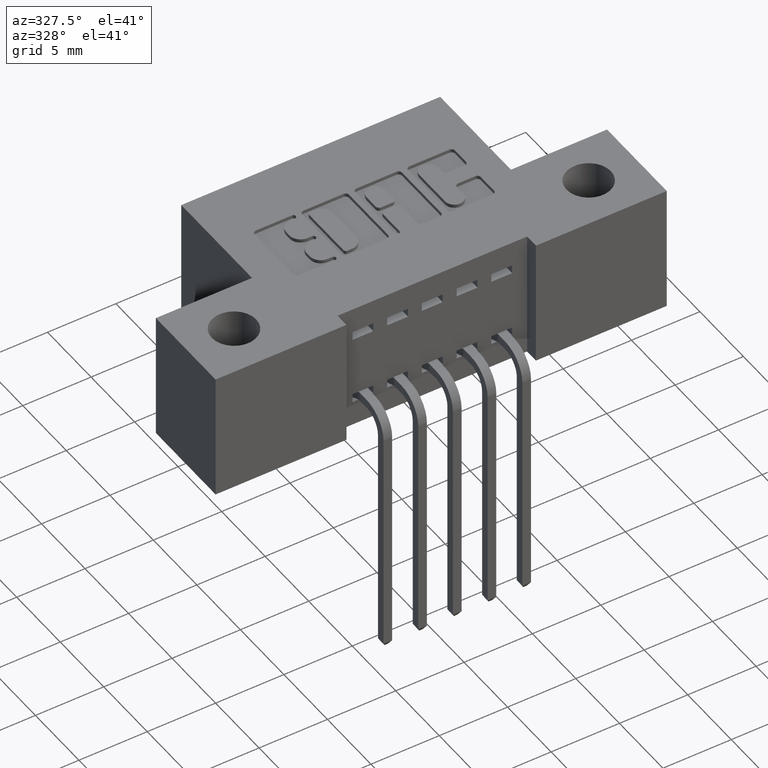
[diagram: clean part render]
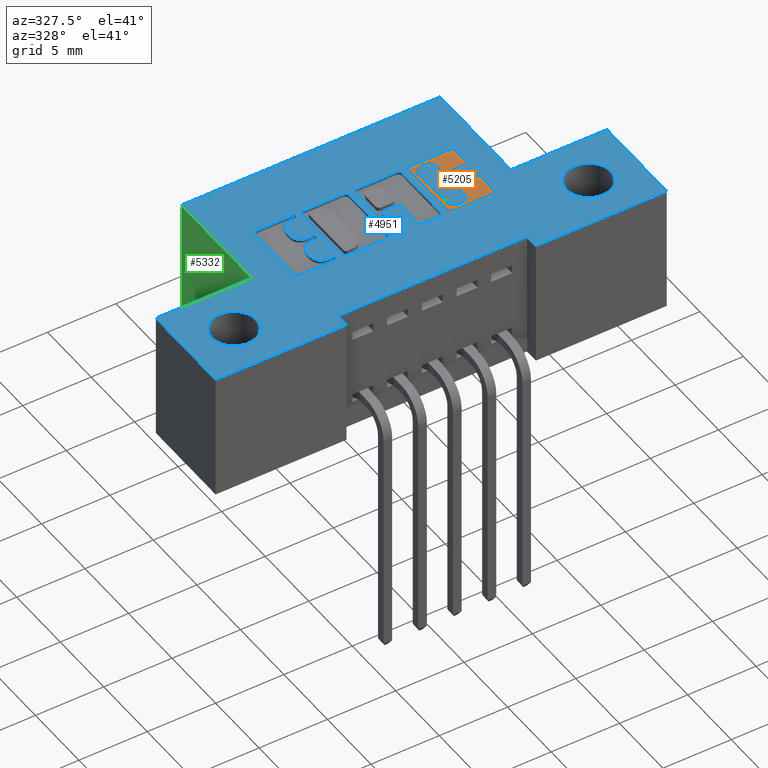
[diagram: same view with three faces highlighted in distinct colors, each labeled with its STEP entity id]
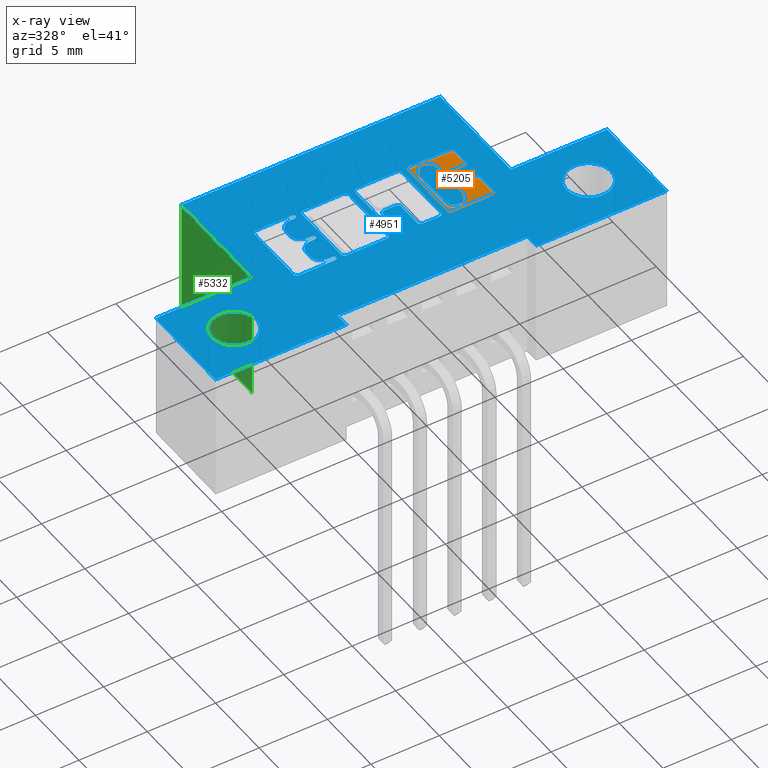
[diagram: x-ray of the same camera — body ghosted, the three highlighted faces saturated]
A machine part, auxiliary view with three faces highlighted in distinct colors.
The next image is the same camera in x-ray (body ghosted, the three faces saturated) — at least one of them is partly hidden behind the body in this view.
Their STEP definitions:

[orange] entity #5205 — the highlighted planar face has unit normal (0, 0, 1).
#7 = DIRECTION ( 'NONE',  ( 0.0000000000000000000, -1.000000000000000000, 0.0000000000000000000 ) ) ;
#77 = ORIENTED_EDGE ( 'NONE', *, *, #3265, .T. ) ;
#200 = CARTESIAN_POINT ( 'NONE',  ( 0.8872938271769668100, 0.2963502266127573400, -0.01000000000000000000 ) ) ;
#279 = VECTOR ( 'NONE', #2085, 39.37007874015748100 ) ;
#356 = VECTOR ( 'NONE', #4657, 39.37007874015748100 ) ;
#461 = DIRECTION ( 'NONE',  ( 1.000000000000000000, 0.0000000000000000000, 0.0000000000000000000 ) ) ;
#512 = ORIENTED_EDGE ( 'NONE', *, *, #3043, .T. ) ;
#536 = ORIENTED_EDGE ( 'NONE', *, *, #3008, .F. ) ;
#679 = VERTEX_POINT ( 'NONE', #6102 ) ;
#759 = CARTESIAN_POINT ( 'NONE',  ( 0.0000000000000000000, 0.4131567020380508300, -0.01000000000000000000 ) ) ;
#766 = ORIENTED_EDGE ( 'NONE', *, *, #2995, .T. ) ;
#821 = VECTOR ( 'NONE', #3322, 39.37007874015748100 ) ;
#882 = ORIENTED_EDGE ( 'NONE', *, *, #2911, .T. ) ;
#965 = ORIENTED_EDGE ( 'NONE', *, *, #3317, .T. ) ;
#1034 = LINE ( 'NONE', #759, #821 ) ;
#1066 = DIRECTION ( 'NONE',  ( -0.0000000000000000000, 0.0000000000000000000, 1.000000000000000000 ) ) ;
#1114 = ORIENTED_EDGE ( 'NONE', *, *, #2974, .F. ) ;
#1141 = VERTEX_POINT ( 'NONE', #4331 ) ;
#1238 = VECTOR ( 'NONE', #3143, 39.37007874015748100 ) ;
#1279 = CARTESIAN_POINT ( 'NONE',  ( 0.0000000000000000000, 0.3439562271012334100, -0.01000000000000000000 ) ) ;
#1305 = ORIENTED_EDGE ( 'NONE', *, *, #3371, .T. ) ;
#1319 = CARTESIAN_POINT ( 'NONE',  ( 0.9368629617061669000, 0.3439562271012334100, -0.01000000000000000000 ) ) ;
#1344 = LINE ( 'NONE', #1852, #4577 ) ;
#1394 = CARTESIAN_POINT ( 'NONE',  ( 0.8512212391779985200, 0.2568421540424528100, -0.01000000000000000000 ) ) ;
#1415 = CARTESIAN_POINT ( 'NONE',  ( 0.0000000000000000000, 0.0000000000000000000, -0.01000000000000000000 ) ) ;
#1457 = VERTEX_POINT ( 'NONE', #5201 ) ;
#1516 = CARTESIAN_POINT ( 'NONE',  ( 0.9466786319099399500, 0.2266589681657827600, -0.01000000000000000000 ) ) ;
#1548 = CIRCLE ( 'NONE', #4423, 0.009815670203788042300 ) ;
#1634 = LINE ( 'NONE', #1806, #6361 ) ;
#1693 = ORIENTED_EDGE ( 'NONE', *, *, #3439, .T. ) ;
#1806 = CARTESIAN_POINT ( 'NONE',  ( 0.0000000000000000000, 0.2168432979619829800, -0.01000000000000000000 ) ) ;
#1851 = VERTEX_POINT ( 'NONE', #4895 ) ;
#1852 = CARTESIAN_POINT ( 'NONE',  ( 0.0000000000000000000, 0.2963502266127573400, -0.01000000000000000000 ) ) ;
#1866 = CARTESIAN_POINT ( 'NONE',  ( 0.9368629617061528000, 0.2865345564089701900, -0.01000000000000000000 ) ) ;
#1951 = VECTOR ( 'NONE', #6973, 39.37007874015748100 ) ;
#2073 = ORIENTED_EDGE ( 'NONE', *, *, #3306, .T. ) ;
#2085 = DIRECTION ( 'NONE',  ( 0.0000000000000000000, 1.000000000000000000, -0.0000000000000000000 ) ) ;
#2143 = LINE ( 'NONE', #7208, #356 ) ;
#2170 = DIRECTION ( 'NONE',  ( 1.000000000000000000, 0.0000000000000000000, 0.0000000000000000000 ) ) ;
#2185 = ORIENTED_EDGE ( 'NONE', *, *, #2925, .T. ) ;
#2267 = DIRECTION ( 'NONE',  ( 1.000000000000000000, 0.0000000000000000000, 0.0000000000000000000 ) ) ;
#2276 = DIRECTION ( 'NONE',  ( -0.0000000000000000000, 0.0000000000000000000, 1.000000000000000000 ) ) ;
#2341 = DIRECTION ( 'NONE',  ( 1.000000000000000000, 0.0000000000000000000, 0.0000000000000000000 ) ) ;
#2354 = PLANE ( 'NONE',  #3310 ) ;
#2471 = CIRCLE ( 'NONE', #4414, 0.009815670203787086500 ) ;
#2645 = CARTESIAN_POINT ( 'NONE',  ( 0.8774781569731656700, 0.3731578454992596800, -0.01000000000000000000 ) ) ;
#2790 = CIRCLE ( 'NONE', #4462, 0.009815670203811535700 ) ;
#2842 = ORIENTED_EDGE ( 'NONE', *, *, #2898, .T. ) ;
#2898 = EDGE_CURVE ( 'NONE', #1457, #3037, #4664, .T. ) ;
#2911 = EDGE_CURVE ( 'NONE', #3927, #1457, #2790, .T. ) ;
#2925 = EDGE_CURVE ( 'NONE', #7298, #3927, #7281, .T. ) ;
#2953 = ORIENTED_EDGE ( 'NONE', *, *, #3347, .T. ) ;
#2974 = EDGE_CURVE ( 'NONE', #7298, #7686, #7116, .T. ) ;
#2995 = EDGE_CURVE ( 'NONE', #5921, #7686, #3654, .T. ) ;
#3008 = EDGE_CURVE ( 'NONE', #5921, #5828, #6788, .T. ) ;
#3037 = VERTEX_POINT ( 'NONE', #1319 ) ;
#3043 = EDGE_CURVE ( 'NONE', #3716, #5828, #6451, .T. ) ;
#3072 = EDGE_CURVE ( 'NONE', #4520, #3716, #1548, .T. ) ;
#3074 = DIRECTION ( 'NONE',  ( -1.000000000000000000, 0.0000000000000000000, 0.0000000000000000000 ) ) ;
#3086 = CARTESIAN_POINT ( 'NONE',  ( 0.8774781569731787700, 0.2568421540424528100, -0.01000000000000000000 ) ) ;
#3118 = EDGE_CURVE ( 'NONE', #679, #4520, #1344, .T. ) ;
#3143 = DIRECTION ( 'NONE',  ( 0.0000000000000000000, -1.000000000000000000, 0.0000000000000000000 ) ) ;
#3265 = EDGE_CURVE ( 'NONE', #7283, #679, #2471, .T. ) ;
#3272 = CARTESIAN_POINT ( 'NONE',  ( 0.8210380533012651100, 0.2168432979619829800, -0.01000000000000000000 ) ) ;
#3306 = EDGE_CURVE ( 'NONE', #4489, #7283, #5411, .T. ) ;
#3310 = AXIS2_PLACEMENT_3D ( 'NONE', #1415, #6565, #6513 ) ;
#3317 = EDGE_CURVE ( 'NONE', #5963, #4489, #3545, .T. ) ;
#3322 = DIRECTION ( 'NONE',  ( -1.000000000000000000, 0.0000000000000000000, 0.0000000000000000000 ) ) ;
#3334 = EDGE_CURVE ( 'NONE', #5898, #5963, #1634, .T. ) ;
#3347 = EDGE_CURVE ( 'NONE', #4187, #5898, #7710, .T. ) ;
#3357 = EDGE_CURVE ( 'NONE', #3777, #4187, #4654, .T. ) ;
#3371 = EDGE_CURVE ( 'NONE', #6313, #3777, #6191, .T. ) ;
#3392 = EDGE_CURVE ( 'NONE', #4682, #6313, #1034, .T. ) ;
#3394 = CARTESIAN_POINT ( 'NONE',  ( 0.9466786319099399500, 0.0000000000000000000, -0.01000000000000000000 ) ) ;
#3400 = EDGE_CURVE ( 'NONE', #1851, #4682, #7107, .T. ) ;
#3426 = EDGE_CURVE ( 'NONE', #1141, #1851, #2143, .T. ) ;
#3439 = EDGE_CURVE ( 'NONE', #3037, #1141, #5317, .T. ) ;
#3484 = CARTESIAN_POINT ( 'NONE',  ( 0.8112223830974583100, 0.4033410318342098800, -0.01000000000000000000 ) ) ;
#3545 = CIRCLE ( 'NONE', #4413, 0.009815670203806345400 ) ;
#3644 = DIRECTION ( 'NONE',  ( 1.000000000000000000, 0.0000000000000000000, 0.0000000000000000000 ) ) ;
#3646 = DIRECTION ( 'NONE',  ( -0.0000000000000000000, 0.0000000000000000000, 1.000000000000000000 ) ) ;
#3654 = LINE ( 'NONE', #5339, #1951 ) ;
#3679 = CARTESIAN_POINT ( 'NONE',  ( 0.9368629617061318100, 0.4033410318342107200, -0.01000000000000000000 ) ) ;
#3716 = VERTEX_POINT ( 'NONE', #7247 ) ;
#3777 = VERTEX_POINT ( 'NONE', #3484 ) ;
#3859 = ORIENTED_EDGE ( 'NONE', *, *, #3072, .T. ) ;
#3899 = CARTESIAN_POINT ( 'NONE',  ( 0.9466786319099399500, 0.2865345564089701900, -0.01000000000000000000 ) ) ;
#3927 = VERTEX_POINT ( 'NONE', #6005 ) ;
#4187 = VERTEX_POINT ( 'NONE', #4689 ) ;
#4223 = CARTESIAN_POINT ( 'NONE',  ( 0.9368629617061341500, 0.2168432979619829800, -0.01000000000000000000 ) ) ;
#4331 = CARTESIAN_POINT ( 'NONE',  ( 0.9466786319099719200, 0.3537718973050384400, -0.01000000000000000000 ) ) ;
#4404 = AXIS2_PLACEMENT_3D ( 'NONE', #6383, #6077, #461 ) ;
#4406 = AXIS2_PLACEMENT_3D ( 'NONE', #3679, #3646, #3644 ) ;
#4407 = AXIS2_PLACEMENT_3D ( 'NONE', #6073, #7649, #6621 ) ;
#4412 = AXIS2_PLACEMENT_3D ( 'NONE', #6371, #6417, #2170 ) ;
#4413 = AXIS2_PLACEMENT_3D ( 'NONE', #7612, #7566, #6103 ) ;
#4414 = AXIS2_PLACEMENT_3D ( 'NONE', #1866, #6877, #2267 ) ;
#4423 = AXIS2_PLACEMENT_3D ( 'NONE', #6110, #2276, #2341 ) ;
#4437 = AXIS2_PLACEMENT_3D ( 'NONE', #1394, #1066, #5773 ) ;
#4439 = AXIS2_PLACEMENT_3D ( 'NONE', #7017, #4514, #5809 ) ;
#4446 = ORIENTED_EDGE ( 'NONE', *, *, #3392, .T. ) ;
#4462 = AXIS2_PLACEMENT_3D ( 'NONE', #7242, #7224, #4893 ) ;
#4489 = VERTEX_POINT ( 'NONE', #1516 ) ;
#4514 = DIRECTION ( 'NONE',  ( -0.0000000000000000000, 0.0000000000000000000, 1.000000000000000000 ) ) ;
#4520 = VERTEX_POINT ( 'NONE', #200 ) ;
#4542 = CARTESIAN_POINT ( 'NONE',  ( 0.9368629617061681200, 0.4131567020380508300, -0.01000000000000000000 ) ) ;
#4577 = VECTOR ( 'NONE', #3074, 39.37007874015748100 ) ;
#4590 = CARTESIAN_POINT ( 'NONE',  ( 0.8774781569731787700, 0.0000000000000000000, -0.01000000000000000000 ) ) ;
#4654 = LINE ( 'NONE', #5755, #7434 ) ;
#4657 = DIRECTION ( 'NONE',  ( 0.0000000000000000000, 1.000000000000000000, -0.0000000000000000000 ) ) ;
#4664 = LINE ( 'NONE', #1279, #6020 ) ;
#4682 = VERTEX_POINT ( 'NONE', #4542 ) ;
#4689 = CARTESIAN_POINT ( 'NONE',  ( 0.8112223830974583100, 0.2266589681657897300, -0.01000000000000000000 ) ) ;
#4893 = DIRECTION ( 'NONE',  ( 1.000000000000000000, 0.0000000000000000000, 0.0000000000000000000 ) ) ;
#4895 = CARTESIAN_POINT ( 'NONE',  ( 0.9466786319099719200, 0.4033410318341946200, -0.01000000000000000000 ) ) ;
#4908 = CARTESIAN_POINT ( 'NONE',  ( 0.8249643213828181700, 0.3731578459575293800, -0.01000000000000000000 ) ) ;
#4930 = FACE_OUTER_BOUND ( 'NONE', #6062, .T. ) ;
#4970 = VECTOR ( 'NONE', #7256, 39.37007874015748100 ) ;
#5201 = CARTESIAN_POINT ( 'NONE',  ( 0.8872938271769772500, 0.3439562271012334100, -0.01000000000000000000 ) ) ;
#5205 = ADVANCED_FACE ( 'NONE', ( #4930 ), #2354, .T. ) ;
#5226 = ORIENTED_EDGE ( 'NONE', *, *, #3118, .T. ) ;
#5290 = ORIENTED_EDGE ( 'NONE', *, *, #3426, .T. ) ;
#5317 = CIRCLE ( 'NONE', #4404, 0.009815670203804980100 ) ;
#5339 = CARTESIAN_POINT ( 'NONE',  ( 0.8249643213828181700, 0.0000000000000000000, -0.01000000000000000000 ) ) ;
#5411 = LINE ( 'NONE', #3394, #279 ) ;
#5466 = CARTESIAN_POINT ( 'NONE',  ( 0.8210380533012990900, 0.4131567020380508300, -0.01000000000000000000 ) ) ;
#5487 = ORIENTED_EDGE ( 'NONE', *, *, #3357, .T. ) ;
#5755 = CARTESIAN_POINT ( 'NONE',  ( 0.8112223830974583100, 0.0000000000000000000, -0.01000000000000000000 ) ) ;
#5773 = DIRECTION ( 'NONE',  ( 1.000000000000000000, 0.0000000000000000000, 0.0000000000000000000 ) ) ;
#5809 = DIRECTION ( 'NONE',  ( 1.000000000000000000, 0.0000000000000000000, 0.0000000000000000000 ) ) ;
#5828 = VERTEX_POINT ( 'NONE', #3086 ) ;
#5898 = VERTEX_POINT ( 'NONE', #3272 ) ;
#5921 = VERTEX_POINT ( 'NONE', #7452 ) ;
#5963 = VERTEX_POINT ( 'NONE', #4223 ) ;
#6005 = CARTESIAN_POINT ( 'NONE',  ( 0.8774781569731656700, 0.3537718973050449900, -0.01000000000000000000 ) ) ;
#6020 = VECTOR ( 'NONE', #7455, 39.37007874015748100 ) ;
#6062 = EDGE_LOOP ( 'NONE', ( #2842, #1693, #5290, #7077, #4446, #1305, #5487, #2953, #7712, #965, #2073, #77, #5226, #3859, #512, #536, #766, #1114, #2185, #882 ) ) ;
#6073 = CARTESIAN_POINT ( 'NONE',  ( 0.8210380533012990900, 0.4033410318342098800, -0.01000000000000000000 ) ) ;
#6077 = DIRECTION ( 'NONE',  ( -0.0000000000000000000, 0.0000000000000000000, 1.000000000000000000 ) ) ;
#6102 = CARTESIAN_POINT ( 'NONE',  ( 0.9368629617061563500, 0.2963502266127573400, -0.01000000000000000000 ) ) ;
#6103 = DIRECTION ( 'NONE',  ( 1.000000000000000000, 0.0000000000000000000, 0.0000000000000000000 ) ) ;
#6110 = CARTESIAN_POINT ( 'NONE',  ( 0.8872938271769668100, 0.2865345564089693500, -0.01000000000000000000 ) ) ;
#6191 = CIRCLE ( 'NONE', #4407, 0.009815670203840767500 ) ;
#6313 = VERTEX_POINT ( 'NONE', #5466 ) ;
#6361 = VECTOR ( 'NONE', #6633, 39.37007874015748100 ) ;
#6371 = CARTESIAN_POINT ( 'NONE',  ( 0.8210380533012651100, 0.2266589681657897300, -0.01000000000000000000 ) ) ;
#6383 = CARTESIAN_POINT ( 'NONE',  ( 0.9368629617061669000, 0.3537718973050384400, -0.01000000000000000000 ) ) ;
#6417 = DIRECTION ( 'NONE',  ( -0.0000000000000000000, 0.0000000000000000000, 1.000000000000000000 ) ) ;
#6451 = LINE ( 'NONE', #4590, #4970 ) ;
#6513 = DIRECTION ( 'NONE',  ( 1.000000000000000000, 0.0000000000000000000, 0.0000000000000000000 ) ) ;
#6565 = DIRECTION ( 'NONE',  ( -0.0000000000000000000, 0.0000000000000000000, 1.000000000000000000 ) ) ;
#6621 = DIRECTION ( 'NONE',  ( 1.000000000000000000, 0.0000000000000000000, 0.0000000000000000000 ) ) ;
#6633 = DIRECTION ( 'NONE',  ( 1.000000000000000000, 0.0000000000000000000, 0.0000000000000000000 ) ) ;
#6788 = CIRCLE ( 'NONE', #4437, 0.02625691779518022500 ) ;
#6877 = DIRECTION ( 'NONE',  ( -0.0000000000000000000, 0.0000000000000000000, 1.000000000000000000 ) ) ;
#6973 = DIRECTION ( 'NONE',  ( 0.0000000000000000000, 1.000000000000000000, -0.0000000000000000000 ) ) ;
#7017 = CARTESIAN_POINT ( 'NONE',  ( 0.8512212391779919700, 0.3731578459575293800, -0.01000000000000000000 ) ) ;
#7077 = ORIENTED_EDGE ( 'NONE', *, *, #3400, .T. ) ;
#7107 = CIRCLE ( 'NONE', #4406, 0.009815670203840084000 ) ;
#7116 = CIRCLE ( 'NONE', #4439, 0.02625691779517367100 ) ;
#7208 = CARTESIAN_POINT ( 'NONE',  ( 0.9466786319099719200, 0.0000000000000000000, -0.01000000000000000000 ) ) ;
#7224 = DIRECTION ( 'NONE',  ( -0.0000000000000000000, 0.0000000000000000000, 1.000000000000000000 ) ) ;
#7242 = CARTESIAN_POINT ( 'NONE',  ( 0.8872938271769772500, 0.3537718973050449900, -0.01000000000000000000 ) ) ;
#7247 = CARTESIAN_POINT ( 'NONE',  ( 0.8774781569731787700, 0.2865345564089684700, -0.01000000000000000000 ) ) ;
#7256 = DIRECTION ( 'NONE',  ( 0.0000000000000000000, -1.000000000000000000, 0.0000000000000000000 ) ) ;
#7281 = LINE ( 'NONE', #7628, #1238 ) ;
#7283 = VERTEX_POINT ( 'NONE', #3899 ) ;
#7298 = VERTEX_POINT ( 'NONE', #2645 ) ;
#7434 = VECTOR ( 'NONE', #7, 39.37007874015748100 ) ;
#7452 = CARTESIAN_POINT ( 'NONE',  ( 0.8249643213828181700, 0.2568421540424528100, -0.01000000000000000000 ) ) ;
#7455 = DIRECTION ( 'NONE',  ( 1.000000000000000000, 0.0000000000000000000, 0.0000000000000000000 ) ) ;
#7566 = DIRECTION ( 'NONE',  ( -0.0000000000000000000, 0.0000000000000000000, 1.000000000000000000 ) ) ;
#7612 = CARTESIAN_POINT ( 'NONE',  ( 0.9368629617061341500, 0.2266589681657897300, -0.01000000000000000000 ) ) ;
#7628 = CARTESIAN_POINT ( 'NONE',  ( 0.8774781569731656700, 0.0000000000000000000, -0.01000000000000000000 ) ) ;
#7649 = DIRECTION ( 'NONE',  ( -0.0000000000000000000, 0.0000000000000000000, 1.000000000000000000 ) ) ;
#7686 = VERTEX_POINT ( 'NONE', #4908 ) ;
#7710 = CIRCLE ( 'NONE', #4412, 0.009815670203806754800 ) ;
#7712 = ORIENTED_EDGE ( 'NONE', *, *, #3334, .T. ) ;

[blue] entity #4951 — the highlighted planar face has unit normal (0, 0, -1).
#2 = VERTEX_POINT ( 'NONE', #7599 ) ;
#17 = EDGE_CURVE ( 'NONE', #3500, #6043, #6108, .T. ) ;
#23 = FACE_BOUND ( 'NONE', #6751, .T. ) ;
#32 = EDGE_CURVE ( 'NONE', #6043, #7791, #3087, .T. ) ;
#36 = EDGE_CURVE ( 'NONE', #7791, #2773, #1348, .T. ) ;
#49 = VERTEX_POINT ( 'NONE', #5565 ) ;
#52 = EDGE_CURVE ( 'NONE', #1000, #2773, #2882, .T. ) ;
#53 = EDGE_CURVE ( 'NONE', #1000, #7249, #7511, .T. ) ;
#55 = VERTEX_POINT ( 'NONE', #5015 ) ;
#74 = CIRCLE ( 'NONE', #4485, 0.02625691779517367100 ) ;
#92 = EDGE_CURVE ( 'NONE', #1593, #1294, #2673, .T. ) ;
#105 = CARTESIAN_POINT ( 'NONE',  ( 0.8112223830974583100, 0.2266589681657897300, 0.0000000000000000000 ) ) ;
#144 = VERTEX_POINT ( 'NONE', #7617 ) ;
#157 = EDGE_CURVE ( 'NONE', #2506, #3946, #4216, .T. ) ;
#176 = CARTESIAN_POINT ( 'NONE',  ( 1.161000000000000000, 0.1350000000000000900, 0.0000000000000000000 ) ) ;
#180 = DIRECTION ( 'NONE',  ( -0.0000000000000000000, 0.0000000000000000000, 1.000000000000000000 ) ) ;
#189 = CARTESIAN_POINT ( 'NONE',  ( 0.8872938271769772500, 0.3537718973050449900, 0.0000000000000000000 ) ) ;
#212 = EDGE_CURVE ( 'NONE', #276, #6999, #5616, .T. ) ;
#229 = ORIENTED_EDGE ( 'NONE', *, *, #5193, .T. ) ;
#238 = ORIENTED_EDGE ( 'NONE', *, *, #6083, .F. ) ;
#243 = VERTEX_POINT ( 'NONE', #5036 ) ;
#252 = CARTESIAN_POINT ( 'NONE',  ( 0.3788421106199183500, 0.2168432979619847600, 0.0000000000000000000 ) ) ;
#276 = VERTEX_POINT ( 'NONE', #2396 ) ;
#319 = EDGE_CURVE ( 'NONE', #6622, #7249, #3756, .T. ) ;
#365 = VECTOR ( 'NONE', #5939, 39.37007874015748100 ) ;
#398 = CIRCLE ( 'NONE', #1129, 0.009815670203840902800 ) ;
#409 = DIRECTION ( 'NONE',  ( -1.000000000000000000, 0.0000000000000000000, 0.0000000000000000000 ) ) ;
#420 = DIRECTION ( 'NONE',  ( -0.0000000000000000000, 0.0000000000000000000, 1.000000000000000000 ) ) ;
#425 = VECTOR ( 'NONE', #6878, 39.37007874015748100 ) ;
#429 = EDGE_CURVE ( 'NONE', #2765, #4003, #5701, .T. ) ;
#441 = EDGE_LOOP ( 'NONE', ( #2187, #2008, #3299, #6555, #2906, #1572, #1690, #6137, #1798, #229, #3907, #1061 ) ) ;
#449 = FACE_BOUND ( 'NONE', #6503, .T. ) ;
#479 = DIRECTION ( 'NONE',  ( 1.000000000000000000, 0.0000000000000000000, 0.0000000000000000000 ) ) ;
#488 = CARTESIAN_POINT ( 'NONE',  ( 0.4382269153529276300, 0.2619953808994901500, 0.0000000000000000000 ) ) ;
#500 = VECTOR ( 'NONE', #7036, 39.37007874015748100 ) ;
#521 = CARTESIAN_POINT ( 'NONE',  ( 0.5059550397591691100, 0.0000000000000000000, 0.0000000000000000000 ) ) ;
#534 = CARTESIAN_POINT ( 'NONE',  ( 0.9466786319099719200, 0.4033410318341946200, 0.0000000000000000000 ) ) ;
#535 = ORIENTED_EDGE ( 'NONE', *, *, #5237, .F. ) ;
#557 = EDGE_CURVE ( 'NONE', #1867, #6891, #4572, .T. ) ;
#559 = VERTEX_POINT ( 'NONE', #1065 ) ;
#568 = DIRECTION ( 'NONE',  ( 0.0000000000000000000, -1.000000000000000000, 0.0000000000000000000 ) ) ;
#570 = ORIENTED_EDGE ( 'NONE', *, *, #3255, .F. ) ;
#571 = DIRECTION ( 'NONE',  ( -0.0000000000000000000, 0.0000000000000000000, 1.000000000000000000 ) ) ;
#576 = DIRECTION ( 'NONE',  ( 1.000000000000000000, 0.0000000000000000000, 0.0000000000000000000 ) ) ;
#587 = VERTEX_POINT ( 'NONE', #488 ) ;
#609 = DIRECTION ( 'NONE',  ( -0.0000000000000000000, 0.0000000000000000000, 1.000000000000000000 ) ) ;
#641 = ORIENTED_EDGE ( 'NONE', *, *, #2389, .F. ) ;
#651 = CARTESIAN_POINT ( 'NONE',  ( 0.3690264404161152600, 0.0000000000000000000, 0.0000000000000000000 ) ) ;
#657 = CARTESIAN_POINT ( 'NONE',  ( 0.6414112885716688500, 0.0000000000000000000, 0.0000000000000000000 ) ) ;
#673 = VERTEX_POINT ( 'NONE', #1844 ) ;
#684 = CIRCLE ( 'NONE', #3604, 0.009815670203796920600 ) ;
#686 = ORIENTED_EDGE ( 'NONE', *, *, #32, .T. ) ;
#693 = DIRECTION ( 'NONE',  ( -1.000000000000000000, 0.0000000000000000000, 0.0000000000000000000 ) ) ;
#722 = LINE ( 'NONE', #7228, #7025 ) ;
#730 = DIRECTION ( 'NONE',  ( 1.000000000000000000, 0.0000000000000000000, 0.0000000000000000000 ) ) ;
#761 = DIRECTION ( 'NONE',  ( -0.0000000000000000000, 0.0000000000000000000, 1.000000000000000000 ) ) ;
#772 = DIRECTION ( 'NONE',  ( 1.000000000000000000, 0.0000000000000000000, 0.0000000000000000000 ) ) ;
#777 = CARTESIAN_POINT ( 'NONE',  ( 0.9368629617061563500, 0.2963502266127573400, 0.0000000000000000000 ) ) ;
#785 = ORIENTED_EDGE ( 'NONE', *, *, #53, .T. ) ;
#787 = VERTEX_POINT ( 'NONE', #3870 ) ;
#797 = EDGE_CURVE ( 'NONE', #7069, #6459, #7430, .T. ) ;
#828 = DIRECTION ( 'NONE',  ( 1.000000000000000000, 0.0000000000000000000, 0.0000000000000000000 ) ) ;
#832 = CIRCLE ( 'NONE', #4451, 0.009815670203806345400 ) ;
#836 = DIRECTION ( 'NONE',  ( -0.0000000000000000000, 0.0000000000000000000, 1.000000000000000000 ) ) ;
#840 = DIRECTION ( 'NONE',  ( 0.0000000000000000000, 0.0000000000000000000, 1.000000000000000000 ) ) ;
#854 = CARTESIAN_POINT ( 'NONE',  ( 0.8512212391779919700, 0.3731578459575293800, 0.0000000000000000000 ) ) ;
#858 = VERTEX_POINT ( 'NONE', #7579 ) ;
#888 = ORIENTED_EDGE ( 'NONE', *, *, #6885, .F. ) ;
#894 = DIRECTION ( 'NONE',  ( -0.0000000000000000000, -1.000000000000000000, -0.0000000000000000000 ) ) ;
#897 = DIRECTION ( 'NONE',  ( 1.000000000000000000, 0.0000000000000000000, 0.0000000000000000000 ) ) ;
#915 = DIRECTION ( 'NONE',  ( -0.0000000000000000000, 0.0000000000000000000, 1.000000000000000000 ) ) ;
#934 = VECTOR ( 'NONE', #5761, 39.37007874015748100 ) ;
#954 = CARTESIAN_POINT ( 'NONE',  ( 0.8112223830974583100, 0.4033410318342098800, 0.0000000000000000000 ) ) ;
#957 = VERTEX_POINT ( 'NONE', #2509 ) ;
#977 = DIRECTION ( 'NONE',  ( 1.000000000000000000, 0.0000000000000000000, 0.0000000000000000000 ) ) ;
#985 = LINE ( 'NONE', #7806, #5821 ) ;
#986 = DIRECTION ( 'NONE',  ( -0.0000000000000000000, 0.0000000000000000000, 1.000000000000000000 ) ) ;
#993 = ORIENTED_EDGE ( 'NONE', *, *, #3295, .F. ) ;
#997 = DIRECTION ( 'NONE',  ( -1.000000000000000000, 0.0000000000000000000, 0.0000000000000000000 ) ) ;
#1000 = VERTEX_POINT ( 'NONE', #3581 ) ;
#1020 = CARTESIAN_POINT ( 'NONE',  ( 0.5157707099630100000, 0.4033410318342098800, 0.0000000000000000000 ) ) ;
#1023 = CARTESIAN_POINT ( 'NONE',  ( 0.9368629617061318100, 0.4033410318342107200, 0.0000000000000000000 ) ) ;
#1032 = CARTESIAN_POINT ( 'NONE',  ( 0.3788421106199220100, 0.2266589681657897300, 0.0000000000000000000 ) ) ;
#1061 = ORIENTED_EDGE ( 'NONE', *, *, #7302, .F. ) ;
#1062 = AXIS2_PLACEMENT_3D ( 'NONE', #1985, #6713, #3128 ) ;
#1065 = CARTESIAN_POINT ( 'NONE',  ( 1.225000000000000500, 0.1350000000000000900, 0.0000000000000000000 ) ) ;
#1070 = ORIENTED_EDGE ( 'NONE', *, *, #5547, .F. ) ;
#1071 = AXIS2_PLACEMENT_3D ( 'NONE', #2891, #2796, #7381 ) ;
#1080 = VERTEX_POINT ( 'NONE', #1339 ) ;
#1129 = AXIS2_PLACEMENT_3D ( 'NONE', #1020, #4760, #730 ) ;
#1136 = VECTOR ( 'NONE', #568, 39.37007874015748100 ) ;
#1145 = CARTESIAN_POINT ( 'NONE',  ( 0.9466786319099719200, 0.3537718973050384400, 0.0000000000000000000 ) ) ;
#1154 = ORIENTED_EDGE ( 'NONE', *, *, #7328, .F. ) ;
#1156 = CARTESIAN_POINT ( 'NONE',  ( 0.0000000000000000000, 0.3218709691426836500, 0.0000000000000000000 ) ) ;
#1170 = ORIENTED_EDGE ( 'NONE', *, *, #3834, .F. ) ;
#1171 = DIRECTION ( 'NONE',  ( -0.0000000000000000000, 0.0000000000000000000, 1.000000000000000000 ) ) ;
#1200 = VERTEX_POINT ( 'NONE', #7130 ) ;
#1224 = CARTESIAN_POINT ( 'NONE',  ( 0.7346601555077878500, 0.2266589681657876200, 0.0000000000000000000 ) ) ;
#1231 = EDGE_CURVE ( 'NONE', #787, #559, #1326, .T. ) ;
#1237 = CARTESIAN_POINT ( 'NONE',  ( 0.6654596805709868100, 0.2237142671046477300, 0.0000000000000000000 ) ) ;
#1245 = CARTESIAN_POINT ( 'NONE',  ( 1.161000000000000000, 0.1350000000000000900, 0.0000000000000000000 ) ) ;
#1249 = DIRECTION ( 'NONE',  ( -0.0000000000000000000, 0.0000000000000000000, 1.000000000000000000 ) ) ;
#1258 = DIRECTION ( 'NONE',  ( 0.0000000000000000000, 1.000000000000000000, -0.0000000000000000000 ) ) ;
#1294 = VERTEX_POINT ( 'NONE', #777 ) ;
#1304 = CARTESIAN_POINT ( 'NONE',  ( 0.3770000000000000600, 0.04000000000000000100, 0.0000000000000000000 ) ) ;
#1326 = CIRCLE ( 'NONE', #4866, 0.06400000000000059800 ) ;
#1339 = CARTESIAN_POINT ( 'NONE',  ( 0.8774781569731787700, 0.2568421540424528100, 0.0000000000000000000 ) ) ;
#1348 = LINE ( 'NONE', #3862, #1136 ) ;
#1358 = CARTESIAN_POINT ( 'NONE',  ( 0.7248444853039844900, 0.0000000000000000000, 0.0000000000000000000 ) ) ;
#1371 = LINE ( 'NONE', #6471, #7529 ) ;
#1378 = CARTESIAN_POINT ( 'NONE',  ( 0.6821463199174500100, 0.3081290308573483800, 0.0000000000000000000 ) ) ;
#1410 = LINE ( 'NONE', #2386, #7556 ) ;
#1412 = ORIENTED_EDGE ( 'NONE', *, *, #7534, .T. ) ;
#1460 = LINE ( 'NONE', #1637, #4669 ) ;
#1496 = DIRECTION ( 'NONE',  ( 1.000000000000000000, 0.0000000000000000000, 0.0000000000000000000 ) ) ;
#1502 = VECTOR ( 'NONE', #1258, 39.37007874015748100 ) ;
#1520 = ORIENTED_EDGE ( 'NONE', *, *, #2840, .T. ) ;
#1539 = CARTESIAN_POINT ( 'NONE',  ( 0.0000000000000000000, 0.0000000000000000000, 0.0000000000000000000 ) ) ;
#1555 = EDGE_CURVE ( 'NONE', #5084, #6282, #7037, .T. ) ;
#1572 = ORIENTED_EDGE ( 'NONE', *, *, #4021, .T. ) ;
#1577 = CARTESIAN_POINT ( 'NONE',  ( -0.0000000000000000000, 0.3081290308573566000, 0.0000000000000000000 ) ) ;
#1593 = VERTEX_POINT ( 'NONE', #3808 ) ;
#1601 = ORIENTED_EDGE ( 'NONE', *, *, #3441, .T. ) ;
#1603 = EDGE_CURVE ( 'NONE', #49, #3620, #5789, .T. ) ;
#1604 = CARTESIAN_POINT ( 'NONE',  ( 0.8774781569731787700, 0.0000000000000000000, 0.0000000000000000000 ) ) ;
#1621 = CARTESIAN_POINT ( 'NONE',  ( 0.6821463199174500100, 0.2983133606535453600, 0.0000000000000000000 ) ) ;
#1637 = CARTESIAN_POINT ( 'NONE',  ( -2.742036592681222600E-014, 0.2305852362472525500, 0.0000000000000000000 ) ) ;
#1640 = CIRCLE ( 'NONE', #4484, 0.03141014465215624000 ) ;
#1650 = DIRECTION ( 'NONE',  ( 1.000000000000000000, 0.0000000000000000000, 0.0000000000000000000 ) ) ;
#1674 = AXIS2_PLACEMENT_3D ( 'NONE', #6332, #7795, #6998 ) ;
#1688 = AXIS2_PLACEMENT_3D ( 'NONE', #4988, #5172, #5341 ) ;
#1690 = ORIENTED_EDGE ( 'NONE', *, *, #3204, .F. ) ;
#1695 = LINE ( 'NONE', #2497, #3421 ) ;
#1698 = ORIENTED_EDGE ( 'NONE', *, *, #5697, .T. ) ;
#1707 = CIRCLE ( 'NONE', #3976, 0.009815670203811535700 ) ;
#1709 = ORIENTED_EDGE ( 'NONE', *, *, #6616, .F. ) ;
#1713 = AXIS2_PLACEMENT_3D ( 'NONE', #5358, #7614, #4153 ) ;
#1714 = DIRECTION ( 'NONE',  ( 1.000000000000000000, 0.0000000000000000000, -6.123233995736768500E-017 ) ) ;
#1716 = DIRECTION ( 'NONE',  ( 1.000000000000000000, 0.0000000000000000000, 0.0000000000000000000 ) ) ;
#1723 = CARTESIAN_POINT ( 'NONE',  ( 0.9368629617061669000, 0.3439562271012334100, 0.0000000000000000000 ) ) ;
#1737 = CARTESIAN_POINT ( 'NONE',  ( 0.0000000000000000000, 0.4131567020380508300, 0.0000000000000000000 ) ) ;
#1741 = AXIS2_PLACEMENT_3D ( 'NONE', #6810, #840, #576 ) ;
#1750 = CARTESIAN_POINT ( 'NONE',  ( 0.4696370600050838200, 0.3081290308573566000, 0.0000000000000000000 ) ) ;
#1753 = AXIS2_PLACEMENT_3D ( 'NONE', #1023, #609, #6329 ) ;
#1777 = CARTESIAN_POINT ( 'NONE',  ( 0.1390000000000000700, 0.1349999999999999800, 0.0000000000000000000 ) ) ;
#1797 = LINE ( 'NONE', #1604, #5817 ) ;
#1798 = ORIENTED_EDGE ( 'NONE', *, *, #7075, .F. ) ;
#1799 = VERTEX_POINT ( 'NONE', #2214 ) ;
#1813 = FACE_BOUND ( 'NONE', #5902, .T. ) ;
#1826 = EDGE_CURVE ( 'NONE', #6887, #6803, #1460, .T. ) ;
#1844 = CARTESIAN_POINT ( 'NONE',  ( 0.3770000000000000600, 0.0000000000000000000, 0.0000000000000000000 ) ) ;
#1858 = VERTEX_POINT ( 'NONE', #6722 ) ;
#1867 = VERTEX_POINT ( 'NONE', #105 ) ;
#1877 = DIRECTION ( 'NONE',  ( 1.000000000000000000, 0.0000000000000000000, 0.0000000000000000000 ) ) ;
#1889 = VERTEX_POINT ( 'NONE', #6125 ) ;
#1913 = PLANE ( 'NONE',  #3536 ) ;
#1923 = CARTESIAN_POINT ( 'NONE',  ( 0.9466786319099399500, 0.0000000000000000000, 0.0000000000000000000 ) ) ;
#1941 = CARTESIAN_POINT ( 'NONE',  ( 0.6315956183678277400, 0.4033410318342097700, 0.0000000000000000000 ) ) ;
#1945 = VERTEX_POINT ( 'NONE', #2798 ) ;
#1958 = CARTESIAN_POINT ( 'NONE',  ( 0.07500000000000005300, 0.1349999999999999800, 0.0000000000000000000 ) ) ;
#1978 = CARTESIAN_POINT ( 'NONE',  ( 0.0000000000000000000, 0.0000000000000000000, 0.0000000000000000000 ) ) ;
#1985 = CARTESIAN_POINT ( 'NONE',  ( 0.3788421106199378300, 0.4033410318342098800, 0.0000000000000000000 ) ) ;
#1996 = CIRCLE ( 'NONE', #2457, 0.009815670203806754800 ) ;
#2005 = ORIENTED_EDGE ( 'NONE', *, *, #4491, .F. ) ;
#2008 = ORIENTED_EDGE ( 'NONE', *, *, #6358, .T. ) ;
#2016 = FACE_BOUND ( 'NONE', #4673, .T. ) ;
#2017 = ORIENTED_EDGE ( 'NONE', *, *, #17, .T. ) ;
#2021 = DIRECTION ( 'NONE',  ( 0.0000000000000000000, 1.000000000000000000, -0.0000000000000000000 ) ) ;
#2045 = CARTESIAN_POINT ( 'NONE',  ( 0.7842292900370103600, 0.2168432979619844000, 0.0000000000000000000 ) ) ;
#2062 = AXIS2_PLACEMENT_3D ( 'NONE', #7472, #3106, #479 ) ;
#2086 = CARTESIAN_POINT ( 'NONE',  ( 1.022999999999999500, 0.5899999999999999700, -1.083200093845833700E-016 ) ) ;
#2088 = VECTOR ( 'NONE', #2601, 39.37007874015748100 ) ;
#2100 = LINE ( 'NONE', #6023, #6739 ) ;
#2115 = AXIS2_PLACEMENT_3D ( 'NONE', #4569, #7728, #897 ) ;
#2138 = DIRECTION ( 'NONE',  ( 1.000000000000000000, 0.0000000000000000000, 0.0000000000000000000 ) ) ;
#2139 = DIRECTION ( 'NONE',  ( -0.0000000000000000000, 0.0000000000000000000, 1.000000000000000000 ) ) ;
#2146 = VERTEX_POINT ( 'NONE', #1304 ) ;
#2187 = ORIENTED_EDGE ( 'NONE', *, *, #2983, .F. ) ;
#2205 = EDGE_CURVE ( 'NONE', #243, #7539, #6541, .T. ) ;
#2210 = VERTEX_POINT ( 'NONE', #5736 ) ;
#2214 = CARTESIAN_POINT ( 'NONE',  ( 0.4900045756779732900, 0.3150000000000201500, 0.0000000000000000000 ) ) ;
#2248 = CARTESIAN_POINT ( 'NONE',  ( 0.7150288151001875600, 0.2983133606535525700, 0.0000000000000000000 ) ) ;
#2251 = LINE ( 'NONE', #4731, #7360 ) ;
#2253 = VECTOR ( 'NONE', #7707, 39.37007874015748100 ) ;
#2264 = DIRECTION ( 'NONE',  ( -0.0000000000000000000, 0.0000000000000000000, 1.000000000000000000 ) ) ;
#2265 = VERTEX_POINT ( 'NONE', #954 ) ;
#2272 = ORIENTED_EDGE ( 'NONE', *, *, #2884, .F. ) ;
#2274 = DIRECTION ( 'NONE',  ( -1.000000000000000000, 0.0000000000000000000, 0.0000000000000000000 ) ) ;
#2284 = DIRECTION ( 'NONE',  ( 1.000000000000000000, -0.0000000000000000000, 3.910469652873041500E-016 ) ) ;
#2317 = DIRECTION ( 'NONE',  ( 0.0000000000000000000, -1.000000000000000000, 0.0000000000000000000 ) ) ;
#2352 = DIRECTION ( 'NONE',  ( -0.0000000000000000000, -1.000000000000000000, -0.0000000000000000000 ) ) ;
#2384 = AXIS2_PLACEMENT_3D ( 'NONE', #5934, #6825, #5793 ) ;
#2386 = CARTESIAN_POINT ( 'NONE',  ( 0.0000000000000000000, 0.4131567020380325100, 0.0000000000000000000 ) ) ;
#2389 = EDGE_CURVE ( 'NONE', #3066, #5326, #5323, .T. ) ;
#2393 = ORIENTED_EDGE ( 'NONE', *, *, #1826, .F. ) ;
#2396 = CARTESIAN_POINT ( 'NONE',  ( 0.7940449602408065100, 0.4033410318342007300, 0.0000000000000000000 ) ) ;
#2406 = CARTESIAN_POINT ( 'NONE',  ( -0.0000000000000000000, 0.2168432979619829800, 0.0000000000000000000 ) ) ;
#2409 = LINE ( 'NONE', #5007, #5558 ) ;
#2415 = LINE ( 'NONE', #2439, #425 ) ;
#2426 = DIRECTION ( 'NONE',  ( -0.0000000000000000000, -1.000000000000000000, -0.0000000000000000000 ) ) ;
#2428 = CIRCLE ( 'NONE', #3105, 0.02625691779518022500 ) ;
#2439 = CARTESIAN_POINT ( 'NONE',  ( 0.0000000000000000000, 0.0000000000000000000, 0.0000000000000000000 ) ) ;
#2443 = CARTESIAN_POINT ( 'NONE',  ( 0.6585887114283307500, 0.0000000000000000000, 0.0000000000000000000 ) ) ;
#2448 = EDGE_CURVE ( 'NONE', #3788, #4132, #4969, .T. ) ;
#2457 = AXIS2_PLACEMENT_3D ( 'NONE', #4086, #761, #2992 ) ;
#2459 = CIRCLE ( 'NONE', #4304, 0.009815670203788042300 ) ;
#2465 = CIRCLE ( 'NONE', #4395, 0.009815670203840767500 ) ;
#2497 = CARTESIAN_POINT ( 'NONE',  ( 0.0000000000000000000, 0.5899999999999999700, 0.0000000000000000000 ) ) ;
#2506 = VERTEX_POINT ( 'NONE', #5315 ) ;
#2509 = CARTESIAN_POINT ( 'NONE',  ( 0.4831336065353511500, 0.3994147637527354900, 0.0000000000000000000 ) ) ;
#2516 = VERTEX_POINT ( 'NONE', #5717 ) ;
#2525 = ORIENTED_EDGE ( 'NONE', *, *, #319, .F. ) ;
#2547 = EDGE_CURVE ( 'NONE', #4192, #4354, #6279, .T. ) ;
#2561 = VECTOR ( 'NONE', #7784, 39.37007874015748100 ) ;
#2586 = VECTOR ( 'NONE', #1714, 39.37007874015748100 ) ;
#2590 = CARTESIAN_POINT ( 'NONE',  ( 0.2030000000000000700, 0.1349999999999999800, 0.0000000000000000000 ) ) ;
#2601 = DIRECTION ( 'NONE',  ( 1.000000000000000000, 0.0000000000000000000, 0.0000000000000000000 ) ) ;
#2659 = DIRECTION ( 'NONE',  ( 0.0000000000000000000, 0.0000000000000000000, 1.000000000000000000 ) ) ;
#2661 = AXIS2_PLACEMENT_3D ( 'NONE', #1245, #2659, #5726 ) ;
#2671 = LINE ( 'NONE', #6338, #934 ) ;
#2673 = CIRCLE ( 'NONE', #5278, 0.009815670203787086500 ) ;
#2681 = VERTEX_POINT ( 'NONE', #6345 ) ;
#2699 = CARTESIAN_POINT ( 'NONE',  ( 0.4831336065353097900, 0.3150000000000201500, 0.0000000000000000000 ) ) ;
#2711 = ORIENTED_EDGE ( 'NONE', *, *, #557, .F. ) ;
#2712 = CARTESIAN_POINT ( 'NONE',  ( 0.7842292900370136900, 0.4131567020380064200, 0.0000000000000000000 ) ) ;
#2723 = EDGE_CURVE ( 'NONE', #5326, #7348, #6115, .T. ) ;
#2743 = ORIENTED_EDGE ( 'NONE', *, *, #212, .T. ) ;
#2745 = DIRECTION ( 'NONE',  ( 0.0000000000000000000, 0.0000000000000000000, 1.000000000000000000 ) ) ;
#2765 = VERTEX_POINT ( 'NONE', #7044 ) ;
#2773 = VERTEX_POINT ( 'NONE', #4079 ) ;
#2779 = EDGE_CURVE ( 'NONE', #587, #7648, #7032, .T. ) ;
#2796 = DIRECTION ( 'NONE',  ( -0.0000000000000000000, 0.0000000000000000000, 1.000000000000000000 ) ) ;
#2798 = CARTESIAN_POINT ( 'NONE',  ( -2.134256245050205600E-018, 0.2699999999999999600, 0.0000000000000000000 ) ) ;
#2811 = VECTOR ( 'NONE', #6396, 39.37007874015748100 ) ;
#2834 = VECTOR ( 'NONE', #997, 39.37007874015748100 ) ;
#2838 = VERTEX_POINT ( 'NONE', #2914 ) ;
#2840 = EDGE_CURVE ( 'NONE', #7069, #6282, #74, .T. ) ;
#2854 = DIRECTION ( 'NONE',  ( 0.0000000000000000000, 1.000000000000000000, -0.0000000000000000000 ) ) ;
#2861 = CARTESIAN_POINT ( 'NONE',  ( 0.4382269153529276300, 0.0000000000000000000, 0.0000000000000000000 ) ) ;
#2874 = EDGE_CURVE ( 'NONE', #5645, #7648, #1640, .T. ) ;
#2879 = LINE ( 'NONE', #6378, #6105 ) ;
#2882 = CIRCLE ( 'NONE', #5345, 0.006870969142657995000 ) ;
#2884 = EDGE_CURVE ( 'NONE', #4132, #4380, #7582, .T. ) ;
#2891 = CARTESIAN_POINT ( 'NONE',  ( 0.4696370600051252300, 0.3680046191005195700, 0.0000000000000000000 ) ) ;
#2905 = CIRCLE ( 'NONE', #1071, 0.03141014465221592800 ) ;
#2906 = ORIENTED_EDGE ( 'NONE', *, *, #5733, .F. ) ;
#2914 = CARTESIAN_POINT ( 'NONE',  ( 0.8872938271769772500, 0.3439562271012334100, 0.0000000000000000000 ) ) ;
#2934 = DIRECTION ( 'NONE',  ( -0.0000000000000000000, 0.0000000000000000000, 1.000000000000000000 ) ) ;
#2936 = EDGE_CURVE ( 'NONE', #3822, #2516, #832, .T. ) ;
#2947 = CIRCLE ( 'NONE', #3494, 0.009815670203803340800 ) ;
#2977 = CARTESIAN_POINT ( 'NONE',  ( 0.2770000000000000200, 0.5899999999999999700, 0.0000000000000000000 ) ) ;
#2983 = EDGE_CURVE ( 'NONE', #7370, #2146, #5524, .T. ) ;
#2990 = CARTESIAN_POINT ( 'NONE',  ( 0.8774781569731656700, 0.3731578454992596800, 0.0000000000000000000 ) ) ;
#2992 = DIRECTION ( 'NONE',  ( 1.000000000000000000, 0.0000000000000000000, 0.0000000000000000000 ) ) ;
#3017 = ORIENTED_EDGE ( 'NONE', *, *, #5250, .F. ) ;
#3029 = LINE ( 'NONE', #1923, #1502 ) ;
#3040 = VECTOR ( 'NONE', #3167, 39.37007874015748100 ) ;
#3049 = ORIENTED_EDGE ( 'NONE', *, *, #92, .F. ) ;
#3058 = DIRECTION ( 'NONE',  ( 1.000000000000000000, 0.0000000000000000000, 0.0000000000000000000 ) ) ;
#3059 = CARTESIAN_POINT ( 'NONE',  ( 0.8249643213828181700, 0.3731578459575293800, 0.0000000000000000000 ) ) ;
#3066 = VERTEX_POINT ( 'NONE', #4559 ) ;
#3087 = CIRCLE ( 'NONE', #5347, 0.009815670203803203800 ) ;
#3103 = CARTESIAN_POINT ( 'NONE',  ( 0.8210380533012990900, 0.4033410318342098800, 0.0000000000000000000 ) ) ;
#3105 = AXIS2_PLACEMENT_3D ( 'NONE', #5179, #5228, #5224 ) ;
#3106 = DIRECTION ( 'NONE',  ( -0.0000000000000000000, 0.0000000000000000000, 1.000000000000000000 ) ) ;
#3116 = ORIENTED_EDGE ( 'NONE', *, *, #2936, .F. ) ;
#3124 = CARTESIAN_POINT ( 'NONE',  ( -2.134256245050205600E-018, 0.2699999999999999600, 0.0000000000000000000 ) ) ;
#3128 = DIRECTION ( 'NONE',  ( 1.000000000000000000, 0.0000000000000000000, 0.0000000000000000000 ) ) ;
#3135 = CARTESIAN_POINT ( 'NONE',  ( 0.5157707099629758000, 0.2168432979619829800, 0.0000000000000000000 ) ) ;
#3136 = VECTOR ( 'NONE', #5852, 39.37007874015748100 ) ;
#3140 = EDGE_CURVE ( 'NONE', #2265, #1867, #2879, .T. ) ;
#3141 = ORIENTED_EDGE ( 'NONE', *, *, #1555, .F. ) ;
#3153 = EDGE_CURVE ( 'NONE', #4380, #49, #2671, .T. ) ;
#3167 = DIRECTION ( 'NONE',  ( -1.000000000000000000, 0.0000000000000000000, 0.0000000000000000000 ) ) ;
#3204 = EDGE_CURVE ( 'NONE', #3410, #5750, #722, .T. ) ;
#3206 = CARTESIAN_POINT ( 'NONE',  ( 0.8249643213828181700, 0.0000000000000000000, 0.0000000000000000000 ) ) ;
#3215 = ORIENTED_EDGE ( 'NONE', *, *, #6797, .F. ) ;
#3230 = LINE ( 'NONE', #6592, #6232 ) ;
#3235 = ORIENTED_EDGE ( 'NONE', *, *, #3549, .F. ) ;
#3236 = LINE ( 'NONE', #6220, #3040 ) ;
#3237 = ORIENTED_EDGE ( 'NONE', *, *, #2723, .F. ) ;
#3254 = DIRECTION ( 'NONE',  ( -0.0000000000000000000, 0.0000000000000000000, 1.000000000000000000 ) ) ;
#3255 = EDGE_CURVE ( 'NONE', #4028, #5944, #7199, .T. ) ;
#3258 = CARTESIAN_POINT ( 'NONE',  ( 1.299999999999999800, 0.5899999999999999700, 0.0000000000000000000 ) ) ;
#3269 = VECTOR ( 'NONE', #6162, 39.37007874015748100 ) ;
#3281 = EDGE_LOOP ( 'NONE', ( #6972, #1070, #5074, #6307, #888, #5196, #5364, #7042, #4920, #5822, #2393, #5560, #6901, #5553, #2272, #6468, #5719, #3676, #3215, #4822, #6996 ) ) ;
#3295 = EDGE_CURVE ( 'NONE', #2838, #4028, #2251, .T. ) ;
#3299 = ORIENTED_EDGE ( 'NONE', *, *, #5905, .T. ) ;
#3314 = AXIS2_PLACEMENT_3D ( 'NONE', #4382, #4328, #4334 ) ;
#3318 = ORIENTED_EDGE ( 'NONE', *, *, #6134, .F. ) ;
#3330 = ORIENTED_EDGE ( 'NONE', *, *, #4899, .T. ) ;
#3350 = CARTESIAN_POINT ( 'NONE',  ( 0.4696370600050838200, 0.3218709691426836500, 0.0000000000000000000 ) ) ;
#3356 = CARTESIAN_POINT ( 'NONE',  ( 0.3690264404161152600, 0.2266589681657897300, 0.0000000000000000000 ) ) ;
#3366 = VECTOR ( 'NONE', #7380, 39.37007874015748100 ) ;
#3410 = VERTEX_POINT ( 'NONE', #2977 ) ;
#3421 = VECTOR ( 'NONE', #2352, 39.37007874015748100 ) ;
#3441 = EDGE_CURVE ( 'NONE', #7239, #858, #6780, .T. ) ;
#3446 = AXIS2_PLACEMENT_3D ( 'NONE', #5900, #5908, #1496 ) ;
#3494 = AXIS2_PLACEMENT_3D ( 'NONE', #1224, #1171, #4394 ) ;
#3500 = VERTEX_POINT ( 'NONE', #6419 ) ;
#3521 = FACE_OUTER_BOUND ( 'NONE', #441, .T. ) ;
#3536 = AXIS2_PLACEMENT_3D ( 'NONE', #7145, #6701, #6814 ) ;
#3549 = EDGE_CURVE ( 'NONE', #5078, #2265, #2465, .T. ) ;
#3581 = CARTESIAN_POINT ( 'NONE',  ( 0.6585887114283307500, 0.2237142671046477300, 0.0000000000000000000 ) ) ;
#3602 = ORIENTED_EDGE ( 'NONE', *, *, #2547, .F. ) ;
#3604 = AXIS2_PLACEMENT_3D ( 'NONE', #2248, #2139, #2138 ) ;
#3620 = VERTEX_POINT ( 'NONE', #5454 ) ;
#3676 = ORIENTED_EDGE ( 'NONE', *, *, #5005, .F. ) ;
#3681 = CARTESIAN_POINT ( 'NONE',  ( 0.6414112885716688500, 0.2266589681657897300, 0.0000000000000000000 ) ) ;
#3710 = VECTOR ( 'NONE', #3792, 39.37007874015748100 ) ;
#3756 = CIRCLE ( 'NONE', #5109, 0.009815670203796511200 ) ;
#3771 = VERTEX_POINT ( 'NONE', #3135 ) ;
#3783 = DIRECTION ( 'NONE',  ( 1.000000000000000000, 0.0000000000000000000, 0.0000000000000000000 ) ) ;
#3788 = VERTEX_POINT ( 'NONE', #5489 ) ;
#3792 = DIRECTION ( 'NONE',  ( 0.0000000000000000000, 1.000000000000000000, -0.0000000000000000000 ) ) ;
#3798 = CARTESIAN_POINT ( 'NONE',  ( 0.5059550397591691100, 0.2266589681657897300, 0.0000000000000000000 ) ) ;
#3808 = CARTESIAN_POINT ( 'NONE',  ( 0.9466786319099399500, 0.2865345564089701900, 0.0000000000000000000 ) ) ;
#3822 = VERTEX_POINT ( 'NONE', #7676 ) ;
#3834 = EDGE_CURVE ( 'NONE', #6388, #2, #2459, .T. ) ;
#3837 = CARTESIAN_POINT ( 'NONE',  ( 0.6585887114283307500, 0.4033410318342098800, 0.0000000000000000000 ) ) ;
#3862 = CARTESIAN_POINT ( 'NONE',  ( 0.6723306497136467600, 0.0000000000000000000, 0.0000000000000000000 ) ) ;
#3870 = CARTESIAN_POINT ( 'NONE',  ( 1.096999999999999300, 0.1350000000000000900, 0.0000000000000000000 ) ) ;
#3907 = ORIENTED_EDGE ( 'NONE', *, *, #6987, .T. ) ;
#3911 = CIRCLE ( 'NONE', #1713, 0.006870969142648501700 ) ;
#3946 = VERTEX_POINT ( 'NONE', #3350 ) ;
#3952 = FACE_BOUND ( 'NONE', #5422, .T. ) ;
#3976 = AXIS2_PLACEMENT_3D ( 'NONE', #189, #180, #1650 ) ;
#4002 = CARTESIAN_POINT ( 'NONE',  ( 0.7346601555077855200, 0.2168432979619844000, 0.0000000000000000000 ) ) ;
#4003 = VERTEX_POINT ( 'NONE', #3798 ) ;
#4021 = EDGE_CURVE ( 'NONE', #144, #5750, #7627, .T. ) ;
#4028 = VERTEX_POINT ( 'NONE', #1723 ) ;
#4079 = CARTESIAN_POINT ( 'NONE',  ( 0.6723306497136467600, 0.2237142671046477300, 0.0000000000000000000 ) ) ;
#4086 = CARTESIAN_POINT ( 'NONE',  ( 0.5157707099629758000, 0.2266589681657897300, 0.0000000000000000000 ) ) ;
#4130 = EDGE_CURVE ( 'NONE', #6147, #1799, #6515, .T. ) ;
#4132 = VERTEX_POINT ( 'NONE', #3356 ) ;
#4153 = DIRECTION ( 'NONE',  ( 1.000000000000000000, 0.0000000000000000000, 0.0000000000000000000 ) ) ;
#4166 = AXIS2_PLACEMENT_3D ( 'NONE', #2699, #4472, #7153 ) ;
#4172 = DIRECTION ( 'NONE',  ( -0.0000000000000000000, 0.0000000000000000000, 1.000000000000000000 ) ) ;
#4192 = VERTEX_POINT ( 'NONE', #2590 ) ;
#4216 = CIRCLE ( 'NONE', #5151, 0.03141014465217447500 ) ;
#4304 = AXIS2_PLACEMENT_3D ( 'NONE', #5615, #3254, #7499 ) ;
#4321 = LINE ( 'NONE', #3124, #2586 ) ;
#4325 = DIRECTION ( 'NONE',  ( 0.0000000000000000000, 1.000000000000000000, -0.0000000000000000000 ) ) ;
#4328 = DIRECTION ( 'NONE',  ( -0.0000000000000000000, 0.0000000000000000000, 1.000000000000000000 ) ) ;
#4334 = DIRECTION ( 'NONE',  ( 1.000000000000000000, 0.0000000000000000000, 0.0000000000000000000 ) ) ;
#4346 = CARTESIAN_POINT ( 'NONE',  ( 0.3770000000000000600, 0.04000000000000000100, 0.0000000000000000000 ) ) ;
#4354 = VERTEX_POINT ( 'NONE', #1958 ) ;
#4361 = ORIENTED_EDGE ( 'NONE', *, *, #7427, .F. ) ;
#4377 = DIRECTION ( 'NONE',  ( -1.000000000000000000, -3.530861605407645300E-014, 0.0000000000000000000 ) ) ;
#4380 = VERTEX_POINT ( 'NONE', #252 ) ;
#4382 = CARTESIAN_POINT ( 'NONE',  ( 0.6315956183678619300, 0.2266589681657897300, 0.0000000000000000000 ) ) ;
#4384 = CARTESIAN_POINT ( 'NONE',  ( 0.4696370600051094100, 0.2305852362473083900, 0.0000000000000000000 ) ) ;
#4386 = DIRECTION ( 'NONE',  ( -0.0000000000000000000, 0.0000000000000000000, 1.000000000000000000 ) ) ;
#4389 = VECTOR ( 'NONE', #2854, 39.37007874015748100 ) ;
#4394 = DIRECTION ( 'NONE',  ( 1.000000000000000000, 0.0000000000000000000, 0.0000000000000000000 ) ) ;
#4395 = AXIS2_PLACEMENT_3D ( 'NONE', #3103, #836, #772 ) ;
#4396 = CARTESIAN_POINT ( 'NONE',  ( 0.7940449602408065100, 0.2266589681657806600, 0.0000000000000000000 ) ) ;
#4422 = AXIS2_PLACEMENT_3D ( 'NONE', #6889, #420, #5549 ) ;
#4433 = CARTESIAN_POINT ( 'NONE',  ( 0.6723306497136467600, 0.2983133606535453600, 0.0000000000000000000 ) ) ;
#4449 = ORIENTED_EDGE ( 'NONE', *, *, #6258, .F. ) ;
#4451 = AXIS2_PLACEMENT_3D ( 'NONE', #6034, #6122, #4601 ) ;
#4472 = DIRECTION ( 'NONE',  ( -0.0000000000000000000, 0.0000000000000000000, 1.000000000000000000 ) ) ;
#4474 = AXIS2_PLACEMENT_3D ( 'NONE', #1032, #2934, #7358 ) ;
#4476 = VECTOR ( 'NONE', #5509, 39.37007874015748100 ) ;
#4484 = AXIS2_PLACEMENT_3D ( 'NONE', #7779, #2264, #5293 ) ;
#4485 = AXIS2_PLACEMENT_3D ( 'NONE', #854, #6519, #6298 ) ;
#4491 = EDGE_CURVE ( 'NONE', #6459, #2838, #1707, .T. ) ;
#4500 = DIRECTION ( 'NONE',  ( 1.000000000000000000, 0.0000000000000000000, 0.0000000000000000000 ) ) ;
#4533 = CIRCLE ( 'NONE', #2661, 0.06400000000000059800 ) ;
#4552 = DIRECTION ( 'NONE',  ( -0.0000000000000000000, 0.0000000000000000000, 1.000000000000000000 ) ) ;
#4554 = AXIS2_PLACEMENT_3D ( 'NONE', #1777, #5848, #1716 ) ;
#4559 = CARTESIAN_POINT ( 'NONE',  ( 0.6414112885716688500, 0.4033410318342098800, 0.0000000000000000000 ) ) ;
#4569 = CARTESIAN_POINT ( 'NONE',  ( 0.7842292900370103600, 0.2266589681657806600, 0.0000000000000000000 ) ) ;
#4572 = CIRCLE ( 'NONE', #4978, 0.009815670203806754800 ) ;
#4576 = AXIS2_PLACEMENT_3D ( 'NONE', #1941, #6182, #5377 ) ;
#4580 = VECTOR ( 'NONE', #4377, 39.37007874015748100 ) ;
#4584 = VERTEX_POINT ( 'NONE', #6148 ) ;
#4601 = DIRECTION ( 'NONE',  ( 1.000000000000000000, 0.0000000000000000000, 0.0000000000000000000 ) ) ;
#4605 = ORIENTED_EDGE ( 'NONE', *, *, #429, .F. ) ;
#4626 = LINE ( 'NONE', #1577, #3136 ) ;
#4669 = VECTOR ( 'NONE', #7418, 39.37007874015748100 ) ;
#4673 = EDGE_LOOP ( 'NONE', ( #5012, #7535 ) ) ;
#4695 = CIRCLE ( 'NONE', #1741, 0.06400000000000000100 ) ;
#4709 = ORIENTED_EDGE ( 'NONE', *, *, #5994, .F. ) ;
#4731 = CARTESIAN_POINT ( 'NONE',  ( -0.0000000000000000000, 0.3439562271012334100, 0.0000000000000000000 ) ) ;
#4743 = AXIS2_PLACEMENT_3D ( 'NONE', #7117, #571, #5700 ) ;
#4760 = DIRECTION ( 'NONE',  ( -0.0000000000000000000, 0.0000000000000000000, 1.000000000000000000 ) ) ;
#4798 = VERTEX_POINT ( 'NONE', #6922 ) ;
#4822 = ORIENTED_EDGE ( 'NONE', *, *, #6366, .F. ) ;
#4830 = ORIENTED_EDGE ( 'NONE', *, *, #5047, .F. ) ;
#4866 = AXIS2_PLACEMENT_3D ( 'NONE', #176, #2745, #6270 ) ;
#4874 = CARTESIAN_POINT ( 'NONE',  ( 0.8872938271769668100, 0.2963502266127573400, 0.0000000000000000000 ) ) ;
#4899 = EDGE_CURVE ( 'NONE', #858, #3500, #684, .T. ) ;
#4920 = ORIENTED_EDGE ( 'NONE', *, *, #2779, .F. ) ;
#4950 = VECTOR ( 'NONE', #6903, 39.37007874015748100 ) ;
#4951 = ADVANCED_FACE ( 'NONE', ( #449, #5204, #2016, #3952, #3521, #1813, #23 ), #1913, .F. ) ;
#4969 = LINE ( 'NONE', #651, #3269 ) ;
#4978 = AXIS2_PLACEMENT_3D ( 'NONE', #5966, #4172, #4500 ) ;
#4988 = CARTESIAN_POINT ( 'NONE',  ( 0.4831336065353353200, 0.2237142671046477300, 0.0000000000000000000 ) ) ;
#4989 = VECTOR ( 'NONE', #3058, 39.37007874015748100 ) ;
#4998 = CIRCLE ( 'NONE', #1674, 0.006870969142663527000 ) ;
#5001 = CARTESIAN_POINT ( 'NONE',  ( 0.6315956183678959100, 0.4131567020380508300, 0.0000000000000000000 ) ) ;
#5005 = EDGE_CURVE ( 'NONE', #1200, #55, #1410, .T. ) ;
#5007 = CARTESIAN_POINT ( 'NONE',  ( 0.9229999999999999300, 0.04000000000000000100, -1.895600338963814900E-033 ) ) ;
#5012 = ORIENTED_EDGE ( 'NONE', *, *, #5771, .F. ) ;
#5014 = ORIENTED_EDGE ( 'NONE', *, *, #52, .F. ) ;
#5015 = CARTESIAN_POINT ( 'NONE',  ( 0.3788421106199378300, 0.4131567020380325100, 0.0000000000000000000 ) ) ;
#5018 = CARTESIAN_POINT ( 'NONE',  ( 0.4382269153529276300, 0.2767188862052003500, 0.0000000000000000000 ) ) ;
#5036 = CARTESIAN_POINT ( 'NONE',  ( 1.299999999999999800, 0.2699999999999999600, 0.0000000000000000000 ) ) ;
#5047 = EDGE_CURVE ( 'NONE', #7239, #7809, #2947, .T. ) ;
#5073 = CARTESIAN_POINT ( 'NONE',  ( 0.9229999999999999300, 0.0000000000000000000, -1.895600338963814900E-033 ) ) ;
#5074 = ORIENTED_EDGE ( 'NONE', *, *, #157, .T. ) ;
#5077 = CIRCLE ( 'NONE', #1753, 0.009815670203840084000 ) ;
#5078 = VERTEX_POINT ( 'NONE', #5675 ) ;
#5084 = VERTEX_POINT ( 'NONE', #5169 ) ;
#5096 = EDGE_CURVE ( 'NONE', #276, #5102, #5982, .T. ) ;
#5098 = ORIENTED_EDGE ( 'NONE', *, *, #3140, .F. ) ;
#5100 = CIRCLE ( 'NONE', #3314, 0.009815670203806891800 ) ;
#5102 = VERTEX_POINT ( 'NONE', #2712 ) ;
#5109 = AXIS2_PLACEMENT_3D ( 'NONE', #5669, #986, #977 ) ;
#5151 = AXIS2_PLACEMENT_3D ( 'NONE', #7420, #1249, #828 ) ;
#5165 = LINE ( 'NONE', #2406, #4989 ) ;
#5169 = CARTESIAN_POINT ( 'NONE',  ( 0.8249643213828181700, 0.2568421540424528100, 0.0000000000000000000 ) ) ;
#5172 = DIRECTION ( 'NONE',  ( -0.0000000000000000000, 0.0000000000000000000, 1.000000000000000000 ) ) ;
#5179 = CARTESIAN_POINT ( 'NONE',  ( 0.8512212391779985200, 0.2568421540424528100, 0.0000000000000000000 ) ) ;
#5193 = EDGE_CURVE ( 'NONE', #1945, #6664, #1695, .T. ) ;
#5196 = ORIENTED_EDGE ( 'NONE', *, *, #4130, .F. ) ;
#5204 = FACE_BOUND ( 'NONE', #3281, .T. ) ;
#5223 = DIRECTION ( 'NONE',  ( 0.0000000000000000000, 1.000000000000000000, -0.0000000000000000000 ) ) ;
#5224 = DIRECTION ( 'NONE',  ( 1.000000000000000000, 0.0000000000000000000, 0.0000000000000000000 ) ) ;
#5228 = DIRECTION ( 'NONE',  ( -0.0000000000000000000, 0.0000000000000000000, 1.000000000000000000 ) ) ;
#5237 = EDGE_CURVE ( 'NONE', #2681, #6054, #5100, .T. ) ;
#5250 = EDGE_CURVE ( 'NONE', #1294, #6388, #3236, .T. ) ;
#5254 = VECTOR ( 'NONE', #5474, 39.37007874015748100 ) ;
#5278 = AXIS2_PLACEMENT_3D ( 'NONE', #7796, #4386, #3783 ) ;
#5284 = VECTOR ( 'NONE', #6571, 39.37007874015748100 ) ;
#5293 = DIRECTION ( 'NONE',  ( 1.000000000000000000, 0.0000000000000000000, 0.0000000000000000000 ) ) ;
#5315 = CARTESIAN_POINT ( 'NONE',  ( 0.4382269153529093600, 0.3532811137948581600, 0.0000000000000000000 ) ) ;
#5323 = CIRCLE ( 'NONE', #4576, 0.009815670203841039800 ) ;
#5326 = VERTEX_POINT ( 'NONE', #5001 ) ;
#5341 = DIRECTION ( 'NONE',  ( 1.000000000000000000, 0.0000000000000000000, 0.0000000000000000000 ) ) ;
#5345 = AXIS2_PLACEMENT_3D ( 'NONE', #1237, #4552, #7767 ) ;
#5347 = AXIS2_PLACEMENT_3D ( 'NONE', #1621, #915, #6164 ) ;
#5358 = CARTESIAN_POINT ( 'NONE',  ( 0.4831336065353510900, 0.4062857328953860500, 0.0000000000000000000 ) ) ;
#5364 = ORIENTED_EDGE ( 'NONE', *, *, #5495, .F. ) ;
#5372 = CARTESIAN_POINT ( 'NONE',  ( 0.3770000000000000600, 0.04000000000000000100, 0.0000000000000000000 ) ) ;
#5377 = DIRECTION ( 'NONE',  ( 1.000000000000000000, 0.0000000000000000000, 0.0000000000000000000 ) ) ;
#5379 = EDGE_CURVE ( 'NONE', #5084, #1080, #2428, .T. ) ;
#5381 = CARTESIAN_POINT ( 'NONE',  ( 0.5157707099630100000, 0.4131567020380508300, 0.0000000000000000000 ) ) ;
#5422 = EDGE_LOOP ( 'NONE', ( #3602, #7682 ) ) ;
#5437 = VECTOR ( 'NONE', #2426, 39.37007874015748100 ) ;
#5454 = CARTESIAN_POINT ( 'NONE',  ( 0.4900045756779975400, 0.2237142671046477300, 0.0000000000000000000 ) ) ;
#5474 = DIRECTION ( 'NONE',  ( 1.000000000000000000, 0.0000000000000000000, 0.0000000000000000000 ) ) ;
#5489 = CARTESIAN_POINT ( 'NONE',  ( 0.3690264404161152600, 0.4033410318342098800, 0.0000000000000000000 ) ) ;
#5495 = EDGE_CURVE ( 'NONE', #5645, #6147, #4626, .T. ) ;
#5509 = DIRECTION ( 'NONE',  ( 0.0000000000000000000, -1.000000000000000000, 0.0000000000000000000 ) ) ;
#5524 = LINE ( 'NONE', #5372, #365 ) ;
#5547 = EDGE_CURVE ( 'NONE', #2506, #4584, #985, .T. ) ;
#5549 = DIRECTION ( 'NONE',  ( 1.000000000000000000, 0.0000000000000000000, 0.0000000000000000000 ) ) ;
#5553 = ORIENTED_EDGE ( 'NONE', *, *, #3153, .F. ) ;
#5558 = VECTOR ( 'NONE', #894, 39.37007874015748100 ) ;
#5560 = ORIENTED_EDGE ( 'NONE', *, *, #6883, .F. ) ;
#5562 = LINE ( 'NONE', #657, #3710 ) ;
#5565 = CARTESIAN_POINT ( 'NONE',  ( 0.4831336064154141400, 0.2168432979619855100, 0.0000000000000000000 ) ) ;
#5599 = EDGE_CURVE ( 'NONE', #6370, #3410, #7071, .T. ) ;
#5610 = CARTESIAN_POINT ( 'NONE',  ( 0.7940449602408065100, 0.0000000000000000000, 0.0000000000000000000 ) ) ;
#5615 = CARTESIAN_POINT ( 'NONE',  ( 0.8872938271769668100, 0.2865345564089693500, 0.0000000000000000000 ) ) ;
#5616 = LINE ( 'NONE', #5610, #2253 ) ;
#5628 = VECTOR ( 'NONE', #4325, 39.37007874015748100 ) ;
#5634 = CIRCLE ( 'NONE', #1062, 0.009815670203822599700 ) ;
#5645 = VERTEX_POINT ( 'NONE', #1750 ) ;
#5658 = DIRECTION ( 'NONE',  ( 0.0000000000000000000, 1.000000000000000000, -0.0000000000000000000 ) ) ;
#5668 = ORIENTED_EDGE ( 'NONE', *, *, #5096, .F. ) ;
#5669 = CARTESIAN_POINT ( 'NONE',  ( 0.6684043816321272300, 0.4033410318342098800, 0.0000000000000000000 ) ) ;
#5675 = CARTESIAN_POINT ( 'NONE',  ( 0.8210380533012990900, 0.4131567020380508300, 0.0000000000000000000 ) ) ;
#5687 = CARTESIAN_POINT ( 'NONE',  ( 0.9229999999999999300, 0.04000000000000000100, -1.895600338963814900E-033 ) ) ;
#5697 = EDGE_CURVE ( 'NONE', #6622, #5102, #6406, .T. ) ;
#5700 = DIRECTION ( 'NONE',  ( 1.000000000000000000, 0.0000000000000000000, 0.0000000000000000000 ) ) ;
#5701 = LINE ( 'NONE', #521, #2561 ) ;
#5717 = CARTESIAN_POINT ( 'NONE',  ( 0.9466786319099399500, 0.2266589681657827600, 0.0000000000000000000 ) ) ;
#5719 = ORIENTED_EDGE ( 'NONE', *, *, #7290, .F. ) ;
#5726 = DIRECTION ( 'NONE',  ( -1.000000000000000000, 0.0000000000000000000, 0.0000000000000000000 ) ) ;
#5733 = EDGE_CURVE ( 'NONE', #144, #243, #3230, .T. ) ;
#5734 = CIRCLE ( 'NONE', #2062, 0.006870969142648501700 ) ;
#5736 = CARTESIAN_POINT ( 'NONE',  ( 0.9368629617061681200, 0.4131567020380508300, 0.0000000000000000000 ) ) ;
#5741 = EDGE_CURVE ( 'NONE', #2516, #1593, #3029, .T. ) ;
#5750 = VERTEX_POINT ( 'NONE', #2086 ) ;
#5761 = DIRECTION ( 'NONE',  ( 1.000000000000000000, 7.203446383881649800E-015, 0.0000000000000000000 ) ) ;
#5771 = EDGE_CURVE ( 'NONE', #559, #787, #4533, .T. ) ;
#5781 = EDGE_CURVE ( 'NONE', #4798, #3946, #5897, .T. ) ;
#5789 = CIRCLE ( 'NONE', #4743, 0.006870969142662229500 ) ;
#5793 = DIRECTION ( 'NONE',  ( 1.000000000000000000, 0.0000000000000000000, 0.0000000000000000000 ) ) ;
#5817 = VECTOR ( 'NONE', #2317, 39.37007874015748100 ) ;
#5818 = CARTESIAN_POINT ( 'NONE',  ( 0.8774781569731656700, 0.3537718973050449900, 0.0000000000000000000 ) ) ;
#5821 = VECTOR ( 'NONE', #2021, 39.37007874015748100 ) ;
#5822 = ORIENTED_EDGE ( 'NONE', *, *, #6090, .T. ) ;
#5848 = DIRECTION ( 'NONE',  ( 0.0000000000000000000, 0.0000000000000000000, 1.000000000000000000 ) ) ;
#5852 = DIRECTION ( 'NONE',  ( 1.000000000000000000, 0.0000000000000000000, 0.0000000000000000000 ) ) ;
#5892 = DIRECTION ( 'NONE',  ( 0.0000000000000000000, -1.000000000000000000, 0.0000000000000000000 ) ) ;
#5897 = LINE ( 'NONE', #1156, #2834 ) ;
#5900 = CARTESIAN_POINT ( 'NONE',  ( 0.7842292900370113600, 0.4033410318342101600, 0.0000000000000000000 ) ) ;
#5902 = EDGE_LOOP ( 'NONE', ( #641, #7597, #535, #1154, #4709, #4605, #6068, #3237 ) ) ;
#5905 = EDGE_CURVE ( 'NONE', #5916, #7539, #2415, .T. ) ;
#5908 = DIRECTION ( 'NONE',  ( -0.0000000000000000000, 0.0000000000000000000, 1.000000000000000000 ) ) ;
#5916 = VERTEX_POINT ( 'NONE', #5073 ) ;
#5932 = DIRECTION ( 'NONE',  ( 1.000000000000000000, 0.0000000000000000000, 0.0000000000000000000 ) ) ;
#5934 = CARTESIAN_POINT ( 'NONE',  ( 0.4696370600051094100, 0.2619953808994901500, 0.0000000000000000000 ) ) ;
#5937 = VECTOR ( 'NONE', #693, 39.37007874015748100 ) ;
#5939 = DIRECTION ( 'NONE',  ( -1.000000000000000000, -0.0000000000000000000, 3.471795492607720400E-033 ) ) ;
#5942 = CARTESIAN_POINT ( 'NONE',  ( -1.087960964565594100E-014, 0.3081290308573242900, 0.0000000000000000000 ) ) ;
#5944 = VERTEX_POINT ( 'NONE', #1145 ) ;
#5966 = CARTESIAN_POINT ( 'NONE',  ( 0.8210380533012651100, 0.2266589681657897300, 0.0000000000000000000 ) ) ;
#5978 = EDGE_CURVE ( 'NONE', #6054, #3066, #5562, .T. ) ;
#5982 = CIRCLE ( 'NONE', #3446, 0.009815670203795690700 ) ;
#5992 = CARTESIAN_POINT ( 'NONE',  ( 1.299999999999999800, 0.0000000000000000000, 0.0000000000000000000 ) ) ;
#5994 = EDGE_CURVE ( 'NONE', #4003, #3771, #1996, .T. ) ;
#6023 = CARTESIAN_POINT ( 'NONE',  ( 0.9466786319099719200, 0.0000000000000000000, 0.0000000000000000000 ) ) ;
#6034 = CARTESIAN_POINT ( 'NONE',  ( 0.9368629617061341500, 0.2266589681657897300, 0.0000000000000000000 ) ) ;
#6043 = VERTEX_POINT ( 'NONE', #1378 ) ;
#6054 = VERTEX_POINT ( 'NONE', #3681 ) ;
#6064 = ORIENTED_EDGE ( 'NONE', *, *, #7174, .F. ) ;
#6068 = ORIENTED_EDGE ( 'NONE', *, *, #7163, .F. ) ;
#6083 = EDGE_CURVE ( 'NONE', #2, #1080, #1797, .T. ) ;
#6090 = EDGE_CURVE ( 'NONE', #587, #6803, #7235, .T. ) ;
#6105 = VECTOR ( 'NONE', #5892, 39.37007874015748100 ) ;
#6108 = LINE ( 'NONE', #5942, #4580 ) ;
#6115 = LINE ( 'NONE', #7377, #5937 ) ;
#6116 = CARTESIAN_POINT ( 'NONE',  ( 0.4831336064154141400, 0.2305852362473100000, 0.0000000000000000000 ) ) ;
#6122 = DIRECTION ( 'NONE',  ( -0.0000000000000000000, 0.0000000000000000000, 1.000000000000000000 ) ) ;
#6125 = CARTESIAN_POINT ( 'NONE',  ( 0.4900045756779996000, 0.4062857328953860500, 0.0000000000000000000 ) ) ;
#6134 = EDGE_CURVE ( 'NONE', #5944, #6707, #2100, .T. ) ;
#6137 = ORIENTED_EDGE ( 'NONE', *, *, #5599, .F. ) ;
#6147 = VERTEX_POINT ( 'NONE', #6934 ) ;
#6148 = CARTESIAN_POINT ( 'NONE',  ( 0.4382269153529093600, 0.3680046191005195700, 0.0000000000000000000 ) ) ;
#6162 = DIRECTION ( 'NONE',  ( 0.0000000000000000000, -1.000000000000000000, 0.0000000000000000000 ) ) ;
#6164 = DIRECTION ( 'NONE',  ( 1.000000000000000000, 0.0000000000000000000, 0.0000000000000000000 ) ) ;
#6182 = DIRECTION ( 'NONE',  ( -0.0000000000000000000, 0.0000000000000000000, 1.000000000000000000 ) ) ;
#6220 = CARTESIAN_POINT ( 'NONE',  ( 0.0000000000000000000, 0.2963502266127573400, 0.0000000000000000000 ) ) ;
#6232 = VECTOR ( 'NONE', #2284, 39.37007874015748100 ) ;
#6246 = ORIENTED_EDGE ( 'NONE', *, *, #5379, .T. ) ;
#6258 = EDGE_CURVE ( 'NONE', #6595, #6999, #7605, .T. ) ;
#6270 = DIRECTION ( 'NONE',  ( -1.000000000000000000, 0.0000000000000000000, 0.0000000000000000000 ) ) ;
#6279 = CIRCLE ( 'NONE', #4554, 0.06400000000000000100 ) ;
#6282 = VERTEX_POINT ( 'NONE', #3059 ) ;
#6298 = DIRECTION ( 'NONE',  ( 1.000000000000000000, 0.0000000000000000000, 0.0000000000000000000 ) ) ;
#6307 = ORIENTED_EDGE ( 'NONE', *, *, #5781, .F. ) ;
#6311 = CARTESIAN_POINT ( 'NONE',  ( 0.0000000000000000000, 0.2168432979619844000, 0.0000000000000000000 ) ) ;
#6329 = DIRECTION ( 'NONE',  ( 1.000000000000000000, 0.0000000000000000000, 0.0000000000000000000 ) ) ;
#6332 = CARTESIAN_POINT ( 'NONE',  ( 0.4831336065353097900, 0.3150000000000201500, 0.0000000000000000000 ) ) ;
#6338 = CARTESIAN_POINT ( 'NONE',  ( -1.562019070573210600E-015, 0.2168432979619820100, 0.0000000000000000000 ) ) ;
#6345 = CARTESIAN_POINT ( 'NONE',  ( 0.6315956183678619300, 0.2168432979619829800, 0.0000000000000000000 ) ) ;
#6358 = EDGE_CURVE ( 'NONE', #7370, #5916, #2409, .T. ) ;
#6366 = EDGE_CURVE ( 'NONE', #957, #1889, #5734, .T. ) ;
#6370 = VERTEX_POINT ( 'NONE', #7413 ) ;
#6378 = CARTESIAN_POINT ( 'NONE',  ( 0.8112223830974583100, 0.0000000000000000000, 0.0000000000000000000 ) ) ;
#6381 = LINE ( 'NONE', #6311, #2811 ) ;
#6388 = VERTEX_POINT ( 'NONE', #4874 ) ;
#6396 = DIRECTION ( 'NONE',  ( -1.000000000000000000, 0.0000000000000000000, 0.0000000000000000000 ) ) ;
#6406 = LINE ( 'NONE', #7049, #5284 ) ;
#6419 = CARTESIAN_POINT ( 'NONE',  ( 0.7150288151001880100, 0.3081290308573495500, 0.0000000000000000000 ) ) ;
#6459 = VERTEX_POINT ( 'NONE', #5818 ) ;
#6468 = ORIENTED_EDGE ( 'NONE', *, *, #2448, .F. ) ;
#6471 = CARTESIAN_POINT ( 'NONE',  ( -0.0000000000000000000, 0.3994147637527354900, 0.0000000000000000000 ) ) ;
#6486 = CARTESIAN_POINT ( 'NONE',  ( -0.0000000000000000000, 0.2168432979619829800, 0.0000000000000000000 ) ) ;
#6503 = EDGE_LOOP ( 'NONE', ( #570, #993, #2005, #7333, #1520, #3141, #6246, #238, #1170, #3017, #3049, #6506, #3116, #6064, #2711, #5098, #3235, #4361, #1709, #3318 ) ) ;
#6506 = ORIENTED_EDGE ( 'NONE', *, *, #5741, .F. ) ;
#6515 = CIRCLE ( 'NONE', #4166, 0.006870969142663527000 ) ;
#6519 = DIRECTION ( 'NONE',  ( -0.0000000000000000000, 0.0000000000000000000, 1.000000000000000000 ) ) ;
#6541 = LINE ( 'NONE', #3258, #3366 ) ;
#6553 = CARTESIAN_POINT ( 'NONE',  ( 0.2770000000000000200, 0.2699999999999999600, -1.696135816819084800E-017 ) ) ;
#6554 = LINE ( 'NONE', #1737, #7729 ) ;
#6555 = ORIENTED_EDGE ( 'NONE', *, *, #2205, .F. ) ;
#6571 = DIRECTION ( 'NONE',  ( 1.000000000000000000, 0.0000000000000000000, 0.0000000000000000000 ) ) ;
#6592 = CARTESIAN_POINT ( 'NONE',  ( 1.299999999999999800, 0.2699999999999999600, 0.0000000000000000000 ) ) ;
#6595 = VERTEX_POINT ( 'NONE', #2045 ) ;
#6607 = VECTOR ( 'NONE', #5223, 39.37007874015748100 ) ;
#6616 = EDGE_CURVE ( 'NONE', #6707, #2210, #5077, .T. ) ;
#6622 = VERTEX_POINT ( 'NONE', #7268 ) ;
#6664 = VERTEX_POINT ( 'NONE', #1978 ) ;
#6687 = DIRECTION ( 'NONE',  ( 1.000000000000000000, 0.0000000000000000000, 0.0000000000000000000 ) ) ;
#6701 = DIRECTION ( 'NONE',  ( 0.0000000000000000000, 0.0000000000000000000, -1.000000000000000000 ) ) ;
#6707 = VERTEX_POINT ( 'NONE', #534 ) ;
#6713 = DIRECTION ( 'NONE',  ( -0.0000000000000000000, 0.0000000000000000000, 1.000000000000000000 ) ) ;
#6716 = LINE ( 'NONE', #6486, #5254 ) ;
#6722 = CARTESIAN_POINT ( 'NONE',  ( 0.4696370600051252300, 0.3994147637527354900, 0.0000000000000000000 ) ) ;
#6723 = EDGE_CURVE ( 'NONE', #4354, #4192, #4695, .T. ) ;
#6725 = LINE ( 'NONE', #1539, #2088 ) ;
#6739 = VECTOR ( 'NONE', #5658, 39.37007874015748100 ) ;
#6751 = EDGE_LOOP ( 'NONE', ( #1698, #5668, #2743, #4449, #1412, #4830, #1601, #3330, #2017, #686, #7490, #5014, #785, #2525 ) ) ;
#6780 = LINE ( 'NONE', #1358, #6607 ) ;
#6797 = EDGE_CURVE ( 'NONE', #1889, #1200, #3911, .T. ) ;
#6803 = VERTEX_POINT ( 'NONE', #4384 ) ;
#6810 = CARTESIAN_POINT ( 'NONE',  ( 0.1390000000000000700, 0.1349999999999999800, 0.0000000000000000000 ) ) ;
#6814 = DIRECTION ( 'NONE',  ( -1.000000000000000000, 0.0000000000000000000, -0.0000000000000000000 ) ) ;
#6825 = DIRECTION ( 'NONE',  ( -0.0000000000000000000, 0.0000000000000000000, 1.000000000000000000 ) ) ;
#6878 = DIRECTION ( 'NONE',  ( 1.000000000000000000, 0.0000000000000000000, 0.0000000000000000000 ) ) ;
#6883 = EDGE_CURVE ( 'NONE', #3620, #6887, #7808, .T. ) ;
#6885 = EDGE_CURVE ( 'NONE', #1799, #4798, #4998, .T. ) ;
#6887 = VERTEX_POINT ( 'NONE', #6116 ) ;
#6889 = CARTESIAN_POINT ( 'NONE',  ( 0.9368629617061669000, 0.3537718973050384400, 0.0000000000000000000 ) ) ;
#6891 = VERTEX_POINT ( 'NONE', #7677 ) ;
#6901 = ORIENTED_EDGE ( 'NONE', *, *, #1603, .F. ) ;
#6903 = DIRECTION ( 'NONE',  ( -0.0000000000000000000, 1.000000000000000000, -0.0000000000000000000 ) ) ;
#6911 = VECTOR ( 'NONE', #7261, 39.37007874015748100 ) ;
#6922 = CARTESIAN_POINT ( 'NONE',  ( 0.4831336065353097900, 0.3218709691426836500, 0.0000000000000000000 ) ) ;
#6934 = CARTESIAN_POINT ( 'NONE',  ( 0.4831336064153886100, 0.3081290308573566000, 0.0000000000000000000 ) ) ;
#6972 = ORIENTED_EDGE ( 'NONE', *, *, #7251, .T. ) ;
#6987 = EDGE_CURVE ( 'NONE', #6664, #673, #6725, .T. ) ;
#6996 = ORIENTED_EDGE ( 'NONE', *, *, #7205, .F. ) ;
#6998 = DIRECTION ( 'NONE',  ( 1.000000000000000000, 0.0000000000000000000, 0.0000000000000000000 ) ) ;
#6999 = VERTEX_POINT ( 'NONE', #4396 ) ;
#7025 = VECTOR ( 'NONE', #5932, 39.37007874015748100 ) ;
#7032 = LINE ( 'NONE', #2861, #500 ) ;
#7036 = DIRECTION ( 'NONE',  ( 0.0000000000000000000, 1.000000000000000000, -0.0000000000000000000 ) ) ;
#7037 = LINE ( 'NONE', #3206, #5628 ) ;
#7042 = ORIENTED_EDGE ( 'NONE', *, *, #2874, .T. ) ;
#7044 = CARTESIAN_POINT ( 'NONE',  ( 0.5059550397591691100, 0.4033410318342098800, 0.0000000000000000000 ) ) ;
#7049 = CARTESIAN_POINT ( 'NONE',  ( -0.0000000000000000000, 0.4131567020380064200, 0.0000000000000000000 ) ) ;
#7069 = VERTEX_POINT ( 'NONE', #2990 ) ;
#7071 = LINE ( 'NONE', #6553, #6911 ) ;
#7075 = EDGE_CURVE ( 'NONE', #1945, #6370, #4321, .T. ) ;
#7078 = CARTESIAN_POINT ( 'NONE',  ( 0.7248444853039844900, 0.2266589681657876200, 0.0000000000000000000 ) ) ;
#7117 = CARTESIAN_POINT ( 'NONE',  ( 0.4831336065353353200, 0.2237142671046477300, 0.0000000000000000000 ) ) ;
#7130 = CARTESIAN_POINT ( 'NONE',  ( 0.4831336065353510900, 0.4131567020380325100, 0.0000000000000000000 ) ) ;
#7145 = CARTESIAN_POINT ( 'NONE',  ( 0.0000000000000000000, 0.5899999999999999700, 0.0000000000000000000 ) ) ;
#7153 = DIRECTION ( 'NONE',  ( 1.000000000000000000, 0.0000000000000000000, 0.0000000000000000000 ) ) ;
#7163 = EDGE_CURVE ( 'NONE', #7348, #2765, #398, .T. ) ;
#7174 = EDGE_CURVE ( 'NONE', #6891, #3822, #5165, .T. ) ;
#7199 = CIRCLE ( 'NONE', #4422, 0.009815670203804980100 ) ;
#7205 = EDGE_CURVE ( 'NONE', #1858, #957, #1371, .T. ) ;
#7217 = LINE ( 'NONE', #4346, #5437 ) ;
#7228 = CARTESIAN_POINT ( 'NONE',  ( 0.0000000000000000000, 0.5899999999999999700, 0.0000000000000000000 ) ) ;
#7235 = CIRCLE ( 'NONE', #2384, 0.03141014465218178200 ) ;
#7239 = VERTEX_POINT ( 'NONE', #7078 ) ;
#7249 = VERTEX_POINT ( 'NONE', #3837 ) ;
#7251 = EDGE_CURVE ( 'NONE', #1858, #4584, #2905, .T. ) ;
#7261 = DIRECTION ( 'NONE',  ( -0.0000000000000000000, 1.000000000000000000, -0.0000000000000000000 ) ) ;
#7268 = CARTESIAN_POINT ( 'NONE',  ( 0.6684043816321272300, 0.4131567020380064200, 0.0000000000000000000 ) ) ;
#7290 = EDGE_CURVE ( 'NONE', #55, #3788, #5634, .T. ) ;
#7302 = EDGE_CURVE ( 'NONE', #2146, #673, #7217, .T. ) ;
#7328 = EDGE_CURVE ( 'NONE', #3771, #2681, #6716, .T. ) ;
#7333 = ORIENTED_EDGE ( 'NONE', *, *, #797, .F. ) ;
#7348 = VERTEX_POINT ( 'NONE', #5381 ) ;
#7358 = DIRECTION ( 'NONE',  ( 1.000000000000000000, 0.0000000000000000000, 0.0000000000000000000 ) ) ;
#7360 = VECTOR ( 'NONE', #1877, 39.37007874015748100 ) ;
#7370 = VERTEX_POINT ( 'NONE', #5687 ) ;
#7377 = CARTESIAN_POINT ( 'NONE',  ( 0.0000000000000000000, 0.4131567020380508300, 0.0000000000000000000 ) ) ;
#7380 = DIRECTION ( 'NONE',  ( -0.0000000000000000000, -1.000000000000000000, -0.0000000000000000000 ) ) ;
#7381 = DIRECTION ( 'NONE',  ( 1.000000000000000000, 0.0000000000000000000, 0.0000000000000000000 ) ) ;
#7413 = CARTESIAN_POINT ( 'NONE',  ( 0.2770000000000000200, 0.2699999999999999600, -1.696135816819084800E-017 ) ) ;
#7418 = DIRECTION ( 'NONE',  ( -1.000000000000000000, -1.189163988687022500E-013, 0.0000000000000000000 ) ) ;
#7420 = CARTESIAN_POINT ( 'NONE',  ( 0.4696370600050838200, 0.3532811137948581600, 0.0000000000000000000 ) ) ;
#7427 = EDGE_CURVE ( 'NONE', #2210, #5078, #6554, .T. ) ;
#7430 = LINE ( 'NONE', #7549, #4476 ) ;
#7472 = CARTESIAN_POINT ( 'NONE',  ( 0.4831336065353510900, 0.4062857328953860500, 0.0000000000000000000 ) ) ;
#7490 = ORIENTED_EDGE ( 'NONE', *, *, #36, .T. ) ;
#7499 = DIRECTION ( 'NONE',  ( 1.000000000000000000, 0.0000000000000000000, 0.0000000000000000000 ) ) ;
#7511 = LINE ( 'NONE', #2443, #4389 ) ;
#7529 = VECTOR ( 'NONE', #6687, 39.37007874015748100 ) ;
#7534 = EDGE_CURVE ( 'NONE', #6595, #7809, #6381, .T. ) ;
#7535 = ORIENTED_EDGE ( 'NONE', *, *, #1231, .F. ) ;
#7539 = VERTEX_POINT ( 'NONE', #5992 ) ;
#7549 = CARTESIAN_POINT ( 'NONE',  ( 0.8774781569731656700, 0.0000000000000000000, 0.0000000000000000000 ) ) ;
#7556 = VECTOR ( 'NONE', #409, 39.37007874015748100 ) ;
#7579 = CARTESIAN_POINT ( 'NONE',  ( 0.7248444853039844900, 0.2983133606535432500, 0.0000000000000000000 ) ) ;
#7582 = CIRCLE ( 'NONE', #4474, 0.009815670203805868300 ) ;
#7597 = ORIENTED_EDGE ( 'NONE', *, *, #5978, .F. ) ;
#7599 = CARTESIAN_POINT ( 'NONE',  ( 0.8774781569731787700, 0.2865345564089684700, 0.0000000000000000000 ) ) ;
#7605 = CIRCLE ( 'NONE', #2115, 0.009815670203796237100 ) ;
#7614 = DIRECTION ( 'NONE',  ( -0.0000000000000000000, 0.0000000000000000000, 1.000000000000000000 ) ) ;
#7617 = CARTESIAN_POINT ( 'NONE',  ( 1.022999999999999500, 0.2699999999999999600, -1.083200093845833700E-016 ) ) ;
#7627 = LINE ( 'NONE', #7812, #4950 ) ;
#7648 = VERTEX_POINT ( 'NONE', #5018 ) ;
#7676 = CARTESIAN_POINT ( 'NONE',  ( 0.9368629617061341500, 0.2168432979619829800, 0.0000000000000000000 ) ) ;
#7677 = CARTESIAN_POINT ( 'NONE',  ( 0.8210380533012651100, 0.2168432979619829800, 0.0000000000000000000 ) ) ;
#7682 = ORIENTED_EDGE ( 'NONE', *, *, #6723, .F. ) ;
#7707 = DIRECTION ( 'NONE',  ( 0.0000000000000000000, -1.000000000000000000, 0.0000000000000000000 ) ) ;
#7728 = DIRECTION ( 'NONE',  ( -0.0000000000000000000, 0.0000000000000000000, 1.000000000000000000 ) ) ;
#7729 = VECTOR ( 'NONE', #2274, 39.37007874015748100 ) ;
#7767 = DIRECTION ( 'NONE',  ( 1.000000000000000000, 0.0000000000000000000, 0.0000000000000000000 ) ) ;
#7779 = CARTESIAN_POINT ( 'NONE',  ( 0.4696370600050838200, 0.2767188862052003500, 0.0000000000000000000 ) ) ;
#7784 = DIRECTION ( 'NONE',  ( 0.0000000000000000000, -1.000000000000000000, 0.0000000000000000000 ) ) ;
#7791 = VERTEX_POINT ( 'NONE', #4433 ) ;
#7795 = DIRECTION ( 'NONE',  ( -0.0000000000000000000, 0.0000000000000000000, 1.000000000000000000 ) ) ;
#7796 = CARTESIAN_POINT ( 'NONE',  ( 0.9368629617061528000, 0.2865345564089701900, 0.0000000000000000000 ) ) ;
#7806 = CARTESIAN_POINT ( 'NONE',  ( 0.4382269153529093600, 0.0000000000000000000, 0.0000000000000000000 ) ) ;
#7808 = CIRCLE ( 'NONE', #1688, 0.006870969142662229500 ) ;
#7809 = VERTEX_POINT ( 'NONE', #4002 ) ;
#7812 = CARTESIAN_POINT ( 'NONE',  ( 1.022999999999999500, 0.2699999999999999600, -1.083200093845833700E-016 ) ) ;

[green] entity #5332 — the highlighted planar face has unit normal (1, 0, 0).
#94 = DIRECTION ( 'NONE',  ( -0.0000000000000000000, 1.000000000000000000, -0.0000000000000000000 ) ) ;
#341 = EDGE_CURVE ( 'NONE', #3410, #2104, #5234, .T. ) ;
#565 = DIRECTION ( 'NONE',  ( 1.000000000000000000, 0.0000000000000000000, -0.0000000000000000000 ) ) ;
#782 = CARTESIAN_POINT ( 'NONE',  ( 0.2770000000000000200, 0.2699999999999999600, -0.3700000000000000000 ) ) ;
#974 = CARTESIAN_POINT ( 'NONE',  ( 0.2770000000000000200, 0.2699999999999999600, -0.3700000000000000000 ) ) ;
#1093 = EDGE_CURVE ( 'NONE', #6370, #7621, #7099, .T. ) ;
#1882 = EDGE_CURVE ( 'NONE', #7621, #2104, #2993, .T. ) ;
#2104 = VERTEX_POINT ( 'NONE', #6328 ) ;
#2703 = ORIENTED_EDGE ( 'NONE', *, *, #1882, .F. ) ;
#2977 = CARTESIAN_POINT ( 'NONE',  ( 0.2770000000000000200, 0.5899999999999999700, 0.0000000000000000000 ) ) ;
#2993 = LINE ( 'NONE', #782, #4306 ) ;
#3172 = AXIS2_PLACEMENT_3D ( 'NONE', #5702, #565, #4121 ) ;
#3364 = VECTOR ( 'NONE', #4819, 39.37007874015748100 ) ;
#3393 = ORIENTED_EDGE ( 'NONE', *, *, #1093, .F. ) ;
#3410 = VERTEX_POINT ( 'NONE', #2977 ) ;
#3715 = DIRECTION ( 'NONE',  ( -0.0000000000000000000, -0.0000000000000000000, -1.000000000000000000 ) ) ;
#4121 = DIRECTION ( 'NONE',  ( -0.0000000000000000000, 0.0000000000000000000, -1.000000000000000000 ) ) ;
#4306 = VECTOR ( 'NONE', #94, 39.37007874015748100 ) ;
#4411 = ORIENTED_EDGE ( 'NONE', *, *, #341, .T. ) ;
#4819 = DIRECTION ( 'NONE',  ( -0.0000000000000000000, -0.0000000000000000000, -1.000000000000000000 ) ) ;
#5095 = PLANE ( 'NONE',  #3172 ) ;
#5234 = LINE ( 'NONE', #6730, #3364 ) ;
#5332 = ADVANCED_FACE ( 'NONE', ( #5903 ), #5095, .F. ) ;
#5599 = EDGE_CURVE ( 'NONE', #6370, #3410, #7071, .T. ) ;
#5648 = ORIENTED_EDGE ( 'NONE', *, *, #5599, .T. ) ;
#5664 = CARTESIAN_POINT ( 'NONE',  ( 0.2770000000000000200, 0.2699999999999999600, -0.3700000000000000000 ) ) ;
#5682 = VECTOR ( 'NONE', #3715, 39.37007874015748100 ) ;
#5702 = CARTESIAN_POINT ( 'NONE',  ( 0.2770000000000000200, 0.2699999999999999600, -0.3700000000000000000 ) ) ;
#5903 = FACE_OUTER_BOUND ( 'NONE', #7088, .T. ) ;
#6328 = CARTESIAN_POINT ( 'NONE',  ( 0.2770000000000000200, 0.5899999999999999700, -0.3700000000000000000 ) ) ;
#6370 = VERTEX_POINT ( 'NONE', #7413 ) ;
#6553 = CARTESIAN_POINT ( 'NONE',  ( 0.2770000000000000200, 0.2699999999999999600, -1.696135816819084800E-017 ) ) ;
#6730 = CARTESIAN_POINT ( 'NONE',  ( 0.2770000000000000200, 0.5899999999999999700, -0.3700000000000000000 ) ) ;
#6911 = VECTOR ( 'NONE', #7261, 39.37007874015748100 ) ;
#7071 = LINE ( 'NONE', #6553, #6911 ) ;
#7088 = EDGE_LOOP ( 'NONE', ( #4411, #2703, #3393, #5648 ) ) ;
#7099 = LINE ( 'NONE', #974, #5682 ) ;
#7261 = DIRECTION ( 'NONE',  ( -0.0000000000000000000, 1.000000000000000000, -0.0000000000000000000 ) ) ;
#7413 = CARTESIAN_POINT ( 'NONE',  ( 0.2770000000000000200, 0.2699999999999999600, -1.696135816819084800E-017 ) ) ;
#7621 = VERTEX_POINT ( 'NONE', #5664 ) ;